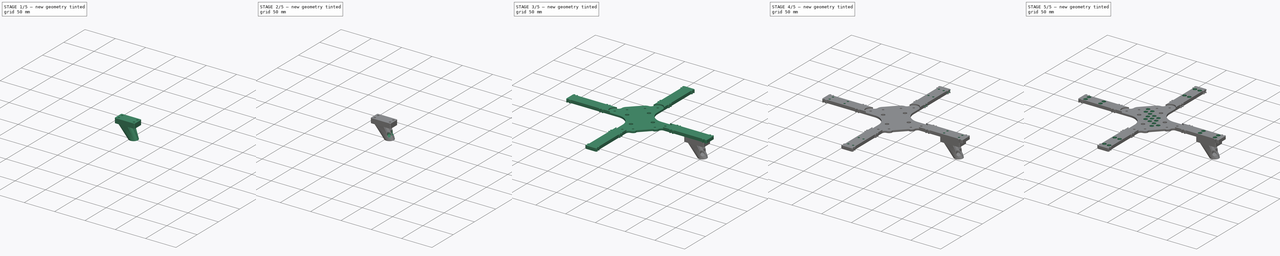
[diagram: build sequence overview — one tinted view per stage of 5, left to right]
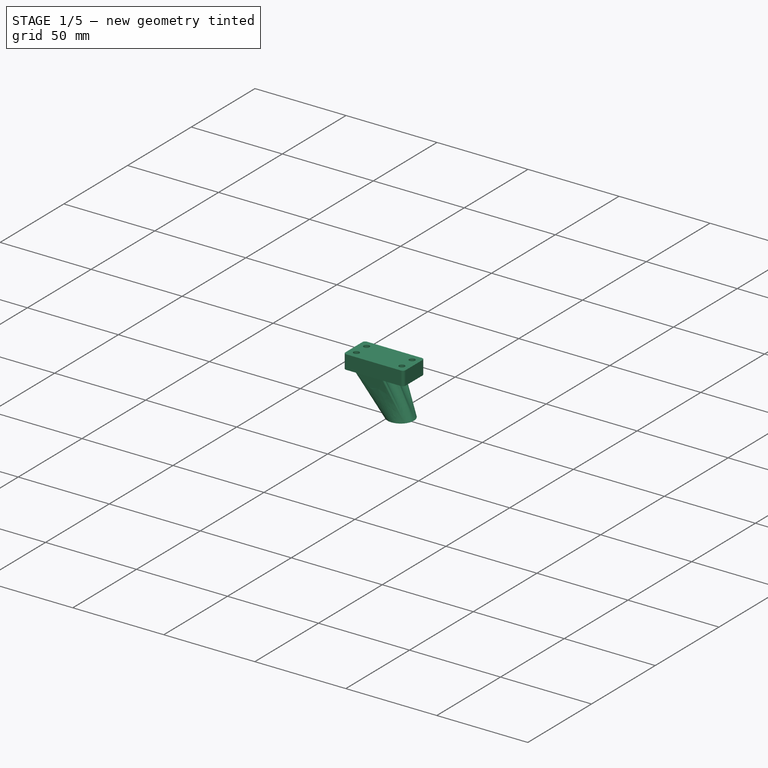
[diagram: stage 1 of 5 — iso view after this stage's code; geometry added in this stage tinted green]
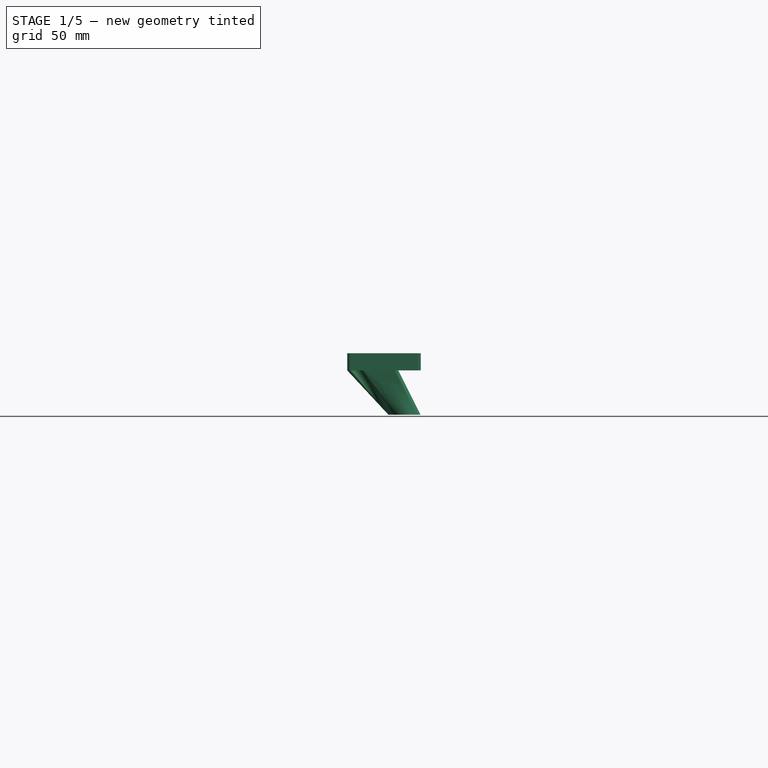
[diagram: stage 1 of 5 — front view after this stage's code; geometry added in this stage tinted green]
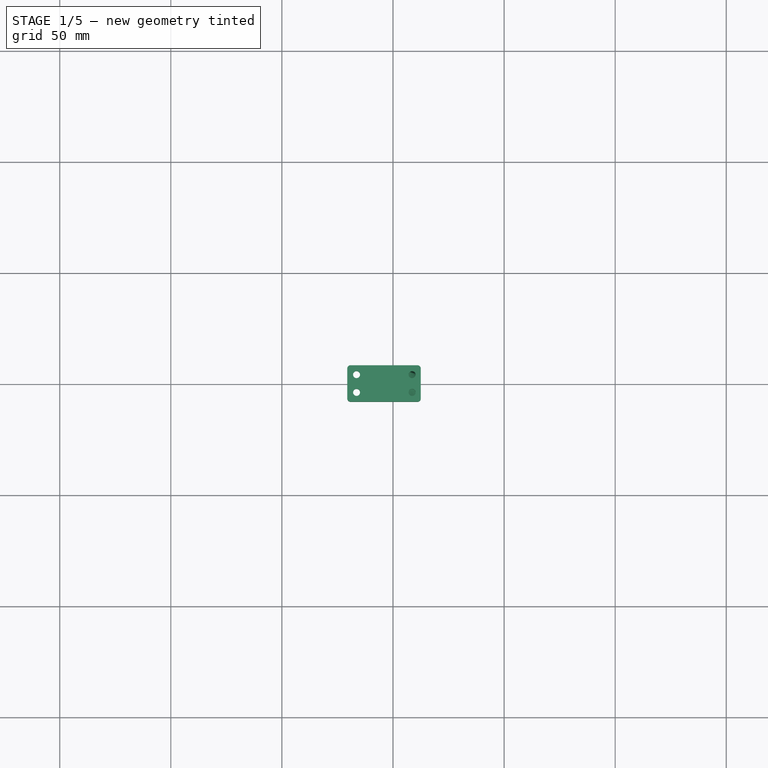
[diagram: stage 1 of 5 — top view after this stage's code; geometry added in this stage tinted green]
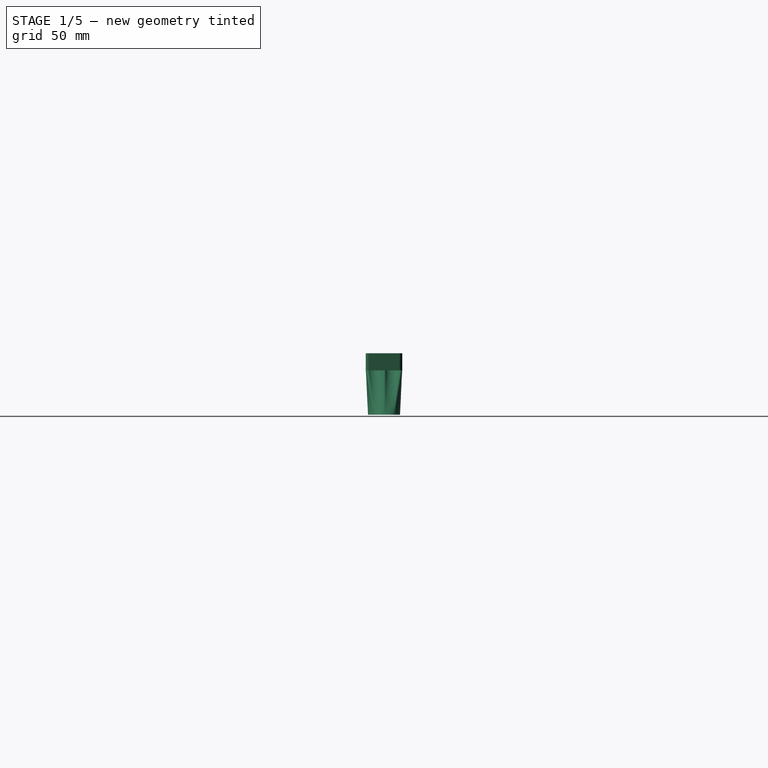
[diagram: stage 1 of 5 — right view after this stage's code; geometry added in this stage tinted green]
FCSTD DOCUMENT  (FreeCAD 0.20R29603 (Git))
Label: Leg_holder_bench
License: All rights reserved
LicenseURL: http://en.wikipedia.org/wiki/All_rights_reserved
objects: Sketcher::SketchObject×15, PartDesign::Pocket×8, PartDesign::Pad×2, PartDesign::Hole×2, PartDesign::Fillet×2, PartDesign::Body×2, PartDesign::Line×2, PartDesign::Draft×2, Spreadsheet::Sheet×1, PartDesign::Chamfer×1, PartDesign::AdditiveLoft×1, PartDesign::Plane×1
note: 56 computed .brp shape members not serialized (recipe doc carries the construction recipe); baked Part::Feature solids carry a one-line shape summary decoded from their .brp

FEATURE [PartDesign::Body] Body
  Group = -> [Sketch,Pad,Sketch001,Pocket,Sketch002,Hole,Sketch003,Pocket001,Sketch004,Sketch005,Pocket002,Pocket003,Sketch006,Hole001,Sketch007,Pocket004,Sketch008,Pocket005,Fillet,Fillet001]
  Origin = -> Origin
  Tip = -> Fillet001
FEATURE [Sketcher::SketchObject] Sketch009
  FullyConstrained = true
  MapMode = 5
  Support = -> [XY_Plane001]
  expr: Constraints[10] = <<dim>>.leg_h
  expr: Constraints[12] = <<dim>>.leg_hole_second_valera - <<dim>>.leg_hole_second_valera_gap
  expr: Constraints[23] = <<dim>>.leg_rounding
  expr: Constraints[24] = <<dim>>.leg_rounding
  expr: Constraints[25] = <<dim>>.leg_rounding
  expr: Constraints[26] = <<dim>>.leg_rounding
  expr: Constraints[27] = <<dim>>.paw_width
  expr: Constraints[28] = <<dim>>.paw_width / 2
  expr: Constraints[29] = <<dim>>.paw_width / 2 - <<dim>>.leg_h / 2
  expr: Constraints[4] = <<dim>>.M3_D
  expr: Constraints[5] = <<dim>>.M3_D
  expr: Constraints[6] = <<dim>>.M3_D
  expr: Constraints[7] = <<dim>>.M3_D
  expr: Constraints[8] = <<dim>>.leg_pos
  expr: Constraints[9] = <<dim>>.leg_w
  sketch-geometry (12):
    g0: LineSegment StartX=79.4 StartY=6.7 StartZ=0 EndX=79.4 EndY=-6.7 EndZ=0
    g1: LineSegment StartX=112.5 StartY=-6.7 StartZ=0 EndX=112.5 EndY=6.7 EndZ=0
    g2: Circle CenterX=108.6 CenterY=4 CenterZ=0 NormalX=0 NormalY=0 NormalZ=1 AngleXU=0 Radius=1.575
    g3: Circle CenterX=108.6 CenterY=-4 CenterZ=0 NormalX=0 NormalY=0 NormalZ=1 AngleXU=0 Radius=1.575
    g4: Circle CenterX=83.6 CenterY=4 CenterZ=0 NormalX=0 NormalY=0 NormalZ=1 AngleXU=0 Radius=1.575
    g5: Circle CenterX=83.6 CenterY=-4 CenterZ=0 NormalX=0 NormalY=0 NormalZ=1 AngleXU=0 Radius=1.575
    g6: ArcOfCircle CenterX=80.9 CenterY=6.7 CenterZ=0 NormalX=0 NormalY=0 NormalZ=1 AngleXU=0 Radius=1.5 StartAngle=1.5708 EndAngle=3.14159
    g7: ArcOfCircle CenterX=111 CenterY=6.7 CenterZ=0 NormalX=0 NormalY=0 NormalZ=1 AngleXU=0 Radius=1.5 StartAngle=0 EndAngle=1.5708
    g8: ArcOfCircle CenterX=80.9 CenterY=-6.7 CenterZ=0 NormalX=0 NormalY=0 NormalZ=1 AngleXU=0 Radius=1.5 StartAngle=3.14159 EndAngle=4.71239
    g9: ArcOfCircle CenterX=111 CenterY=-6.7 CenterZ=0 NormalX=0 NormalY=0 NormalZ=1 AngleXU=0 Radius=1.5 StartAngle=4.71239 EndAngle=6.28319
    g10: LineSegment StartX=80.9 StartY=8.2 StartZ=0 EndX=111 EndY=8.2 EndZ=0
    g11: LineSegment StartX=80.9 StartY=-8.2 StartZ=0 EndX=111 EndY=-8.2 EndZ=0
  constraints (30):
    c: Vertical(g0)
    c: Vertical(g1)
    c: Symmetric(g4,g5,g-1)
    c: Symmetric(g2,g3,g-1)
    c: Diameter(g2) = 3.15
    c: Diameter(g3) = 3.15
    c: Diameter(g4) = 3.15
    c: Diameter(g5) = 3.15
    c: DistanceX(g-1,g2) = 108.6
    c: DistanceX(g4,g2) = 25
    c: DistanceY(g5,g4) = 8
    c: DistanceY(g4,g2) = 0
    c: Distance(g2,g1) = 3.9
    c: Horizontal(g10)
    c: Horizontal(g11)
    c: Tangent(g11,g8) = -1.5708
    c: Tangent(g8,g0) = -1.5708
    c: Tangent(g11,g9) = -1.5708
    c: Tangent(g9,g1) = -1.5708
    c: Tangent(g10,g6) = 1.5708
    c: Tangent(g6,g0) = -1.5708
    c: Tangent(g10,g7) = 1.5708
    c: Tangent(g7,g1) = -1.5708
    c: Diameter(g6) = 3
    c: Diameter(g7) = 3
    c: Diameter(g8) = 3
    c: Diameter(g9) = 3
    c: DistanceY(g8,g6) = 16.4
    c: Distance(g6,g-1) = 8.2
    c: Distance(g4,g0) = 4.2
FEATURE [PartDesign::Pad] Pad001
  Direction = (0,0,1)
  Length = 7.7
  Length2 = 10
  Profile = -> Sketch009
  ReferenceAxis = -> Sketch009 [N_Axis]
  Reversed = true
  Type = 0
  expr: Length = <<dim>>.leg_thickness
FEATURE [PartDesign::Chamfer] Chamfer
  Angle = 45
  Base = -> Pad001 [Edge36,Edge33,Edge27,Edge30]
  BaseFeature = -> Pad001
  ChamferType = 0
  FlipDirection = false
  Size = 2
  Size2 = 1
  SupportTransform = false
  UseAllEdges = false
  expr: Size = <<dim>>.leg_screw_cham
FEATURE [Sketcher::SketchObject] Sketch010
  FullyConstrained = true
  MapMode = 5
  Placement = pos=(0,0,-7.7) rot=(1,0,0;3.14159rad)
  Support = -> [Chamfer]
  expr: Constraints[1] = <<dim>>.leg_pos - <<dim>>.leg_w / 2
  expr: Constraints[2] = <<dim>>.leg_h / 2
  expr: Constraints[3] = <<dim>>.leg_pos
  expr: Constraints[5] = <<dim>>.M3_D + 2 * <<dim>>.leg_screw_cham
  sketch-geometry (3):
    g0: Circle CenterX=96.1 CenterY=0 CenterZ=0 NormalX=0 NormalY=0 NormalZ=1 AngleXU=0 Radius=9.5494
    g1: GeomPoint X=108.6 Y=4 Z=0
    g2: Circle CenterX=108.6 CenterY=4 CenterZ=0 NormalX=0 NormalY=0 NormalZ=1 AngleXU=0 Radius=3.575
  constraints (7):
    c: PointOnObject(g0,g-1)
    c: DistanceX(g-1,g0) = 96.1
    c: Distance(g1,g-1) = 4
    c: DistanceX(g-1,g1) = 108.6
    c: Coincident(g2,g1)
    c: Diameter(g2) = 7.15
    c: Tangent(g2,g0)
FEATURE [Sketcher::SketchObject] Sketch011
  AttachmentOffset = pos=(0,0,-27.7) rot=(0,0,1;0rad)
  FullyConstrained = true
  MapMode = 5
  Placement = pos=(0,0,-27.7) rot=(0,0,1;0rad)
  Support = -> [XY_Plane]
  expr: .AttachmentOffset.Base.x = 0
  expr: .AttachmentOffset.Base.z = -<<dim>>.leg_thickness - <<dim>>.leg_hold_len
  expr: Constraints[1] = <<dim>>.leg_pos - <<dim>>.leg_w + <<dim>>.leg_stick_base_w / 2 + <<dim>>.leg_hold_len * tan(<<dim>>.leg_angle)
  expr: Constraints[2] = 2 * sqrt((<<dim>>.leg_stick_base_w / 2) ^ 2 + (<<dim>>.leg_h / 2) ^ 2) - (<<dim>>.M3_D + 2 * <<dim>>.leg_screw_cham)
  sketch-geometry (1):
    g0: Circle CenterX=105.147 CenterY=0 CenterZ=0 NormalX=0 NormalY=0 NormalZ=1 AngleXU=0 Radius=7.19533
  constraints (3):
    c: PointOnObject(g0,g-1)
    c: DistanceX(g-1,g0) = 105.147
    c: Diameter(g0) = 14.3907
FEATURE [Sketcher::SketchObject] Sketch012
  FullyConstrained = true
  MapMode = 5
  Placement = pos=(0,0,-7.7) rot=(1,0,0;3.14159rad)
  Support = -> [Chamfer]
  expr: Constraints[17] = <<dim>>.paw_width
  expr: Constraints[27] = <<dim>>.leg_pos - <<dim>>.leg_w
  expr: Constraints[2] = <<dim>>.leg_h / 2
  expr: Constraints[31] = <<dim>>.leg_stick_base_w / 2
  expr: Constraints[34] = (<<dim>>.paw_width - <<dim>>.leg_h) / 2
  expr: Constraints[38] = 2
  expr: Constraints[4] = <<dim>>.leg_stick_base_w
  expr: Constraints[5] = <<dim>>.M3_D + <<dim>>.leg_screw_cham * 2
  expr: Constraints[6] = <<dim>>.M3_D + <<dim>>.leg_screw_cham * 2
  sketch-geometry (16):
    g0: ArcOfCircle CenterX=83.6 CenterY=4 CenterZ=0 NormalX=0 NormalY=0 NormalZ=1 AngleXU=0 Radius=3.575 StartAngle=4.0919 EndAngle=7.12114
    g1: ArcOfCircle CenterX=86.5837 CenterY=7.315 CenterZ=0 NormalX=0 NormalY=0 NormalZ=1 AngleXU=0 Radius=0.885 StartAngle=1.5708 EndAngle=3.97954
    g2: LineSegment StartX=86.5837 StartY=8.2 StartZ=0 EndX=100.616 EndY=8.2 EndZ=0
    g3: ArcOfCircle CenterX=100.616 CenterY=7.315 CenterZ=0 NormalX=0 NormalY=0 NormalZ=1 AngleXU=0 Radius=0.885 StartAngle=5.44523 EndAngle=7.85398
    g4: ArcOfCircle CenterX=103.6 CenterY=4 CenterZ=0 NormalX=0 NormalY=0 NormalZ=1 AngleXU=0 Radius=3.575 StartAngle=2.30364 EndAngle=4.20562
    g5: ArcOfCircle CenterX=103.6 CenterY=-4 CenterZ=0 NormalX=0 NormalY=0 NormalZ=1 AngleXU=0 Radius=3.575 StartAngle=2.07757 EndAngle=3.97954
    g6: ArcOfCircle CenterX=100.616 CenterY=-7.315 CenterZ=0 NormalX=0 NormalY=0 NormalZ=1 AngleXU=0 Radius=0.885 StartAngle=4.71239 EndAngle=7.12114
    g7: LineSegment StartX=100.616 StartY=-8.2 StartZ=0 EndX=86.5837 EndY=-8.2 EndZ=0
    g8: ArcOfCircle CenterX=86.5837 CenterY=-7.315 CenterZ=0 NormalX=0 NormalY=0 NormalZ=1 AngleXU=0 Radius=0.885 StartAngle=2.30364 EndAngle=4.71239
    g9: ArcOfCircle CenterX=83.6 CenterY=-4 CenterZ=0 NormalX=0 NormalY=0 NormalZ=1 AngleXU=0 Radius=3.575 StartAngle=5.44523 EndAngle=8.47447
    g10: LineSegment StartX=93.6 StartY=17.38 StartZ=0 EndX=93.6 EndY=-19.22 EndZ=0
    g11: GeomPoint X=93.6 Y=0 Z=0
    g12: ArcOfCircle CenterX=80.7414 CenterY=-7e-16 CenterZ=0 NormalX=0 NormalY=0 NormalZ=1 AngleXU=0 Radius=1.34144 StartAngle=0.950312 EndAngle=5.33287
    g13: ArcOfCircle CenterX=101.379 CenterY=-2e-16 CenterZ=0 NormalX=0 NormalY=0 NormalZ=1 AngleXU=0 Radius=1 StartAngle=5.21916 EndAngle=7.34721
    g14: GeomPoint X=79.4 Y=0 Z=0
    g15: GeomPoint X=102.379 Y=0 Z=0
  constraints (39):
    c: Symmetric(g0,g9,g-1)
    c: Symmetric(g4,g5,g-1)
    c: Distance(g0,g-1) = 4
    c: DistanceY(g0,g4) = 0
    c: DistanceX(g0,g4) = 20
    c: Diameter(g4) = 7.15
    c: Diameter(g0) = 7.15
    c: Tangent(g1,g0) = 1.5708
    c: Tangent(g4,g3) = 1.5708
    c: Tangent(g6,g5) = 1.5708
    c: Tangent(g9,g8) = 1.5708
    c: Tangent(g8,g7) = 1.5708
    c: Tangent(g7,g6) = 1.5708
    c: Tangent(g2,g1) = 1.5708
    c: Symmetric(g3,g6,g-1)
    c: Symmetric(g1,g8,g-1)
    c: Tangent(g3,g2) = 1.5708
    c: Distance(g1,g7) = 16.4
    c: Distance(g10,g-1) = 17.38
    c: Distance(g10,g-1) = 19.22
    c: Symmetric(g1,g3,g10)
    c: Symmetric(g4,g5,g-1)
    c: Symmetric(g0,g9,g-1)
    c: PointOnObject(g11,g-1)
    c: PointOnObject(g11,g10)
    c: Coincident(g12,g0)
    c: Diameter(g8) = 1.77
    c: DistanceX(g-1,g0) = 83.6
    c: Horizontal(g2)
    c: Coincident(g13,g5)
    c: Tangent(g13,g4) = 1.5708
    c: DistanceX(g0,g11) = 10
    c: PointOnObject(g14,g-1)
    c: PointOnObject(g14,g12)
    c: DistanceX(g14,g0) = 4.2
    c: Tangent(g12,g9) = 1.5708
    c: PointOnObject(g15,g13)
    c: PointOnObject(g15,g-1)
    c: Diameter(g13) = 2
FEATURE [PartDesign::AdditiveLoft] AdditiveLoft
  BaseFeature = -> Chamfer
  Closed = false
  Profile = -> Sketch012
  Ruled = false
  Sections = -> [Sketch011]
FEATURE [PartDesign::Line] DatumLine001
  AttacherType = Attacher::AttachEngineLine
  AttachmentOffset = pos=(0,0,-27.7) rot=(-1,0,0;1.5708rad)
  Length = 20
  MapMode = 42
  Placement = pos=(105.147,-4e-16,-27.7) rot=(-1,0,0;1.5708rad)
  ResizeMode = 0
  Support = -> [AdditiveLoft]
  expr: .AttachmentOffset.Base.z = -<<dim>>.leg_thickness - +<<dim>>.leg_hold_len
FEATURE [PartDesign::Plane] DatumPlane
  AttachmentOffset = pos=(105.147,0,0) rot=(0,1,0;0.523599rad)
  Length = 163.542
  MapMode = 5
  Placement = pos=(105.147,0,-27.7) rot=(0.965926,0,0.258819;3.14159rad)
  ResizeMode = 0
  Support = -> [AdditiveLoft]
  Width = 67.1131
  expr: .AttachmentOffset.Base.x = <<dim>>.leg_pos - <<dim>>.leg_w + <<dim>>.leg_stick_base_w / 2 + <<dim>>.leg_hold_len * tan(<<dim>>.leg_angle)
  expr: .AttachmentOffset.Rotation.Pitch = <<dim>>.leg_angle
FEATURE [Sketcher::SketchObject] Sketch013
  FullyConstrained = true
  MapMode = 5
  Placement = pos=(105.147,0,-27.7) rot=(0.965926,0,0.258819;3.14159rad)
  Support = -> [DatumPlane]
  expr: Constraints[1] = <<dim>>.leg_stick
  sketch-geometry (1):
    g0: Circle CenterX=0 CenterY=0 CenterZ=0 NormalX=0 NormalY=0 NormalZ=1 AngleXU=0 Radius=4
  constraints (2):
    c: Coincident(g0,g-1)
    c: Diameter(g0) = 8
FEATURE [PartDesign::Pocket] Pocket006
  BaseFeature = -> AdditiveLoft
  Direction = (-0.5,0,0.866025)
  Length = 55.4
  Length2 = 5
  Midplane = true
  Profile = -> Sketch013
  ReferenceAxis = -> Sketch013 [N_Axis]
  Type = 0
  expr: Length = 2 * (<<dim>>.leg_thickness + <<dim>>.leg_hold_len)
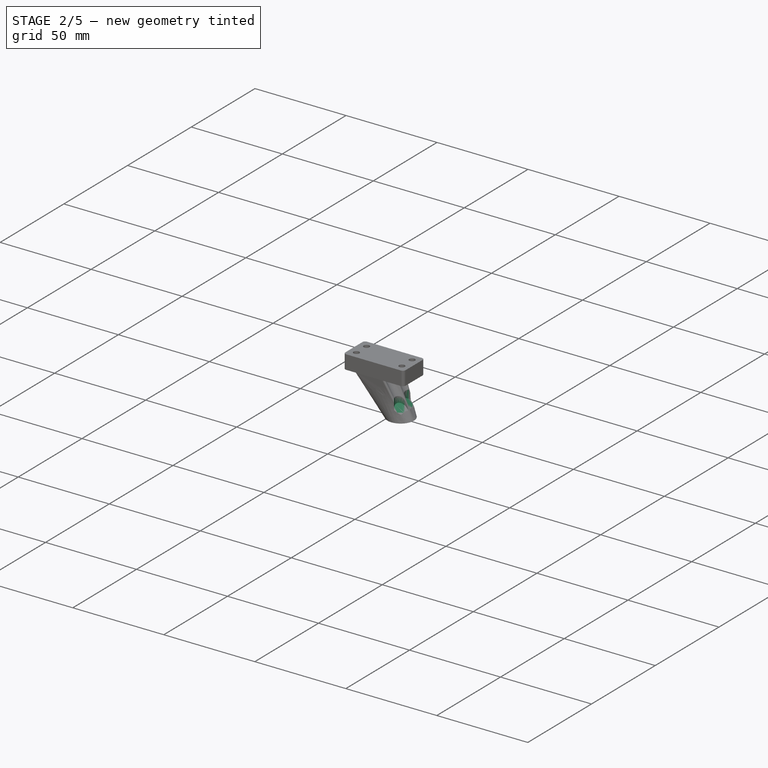
[diagram: stage 2 of 5 — iso view after this stage's code; geometry added in this stage tinted green]
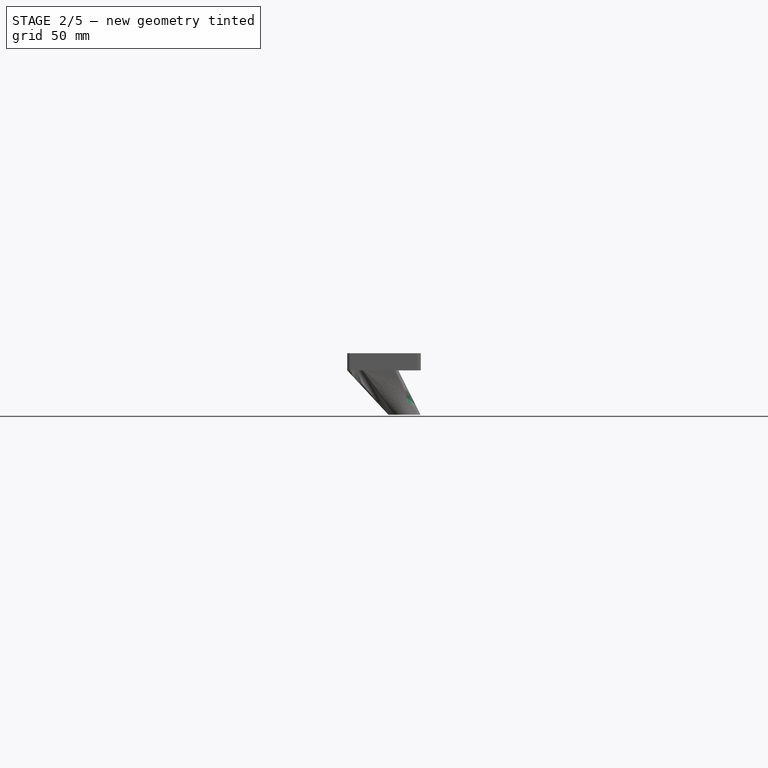
[diagram: stage 2 of 5 — front view after this stage's code; geometry added in this stage tinted green]
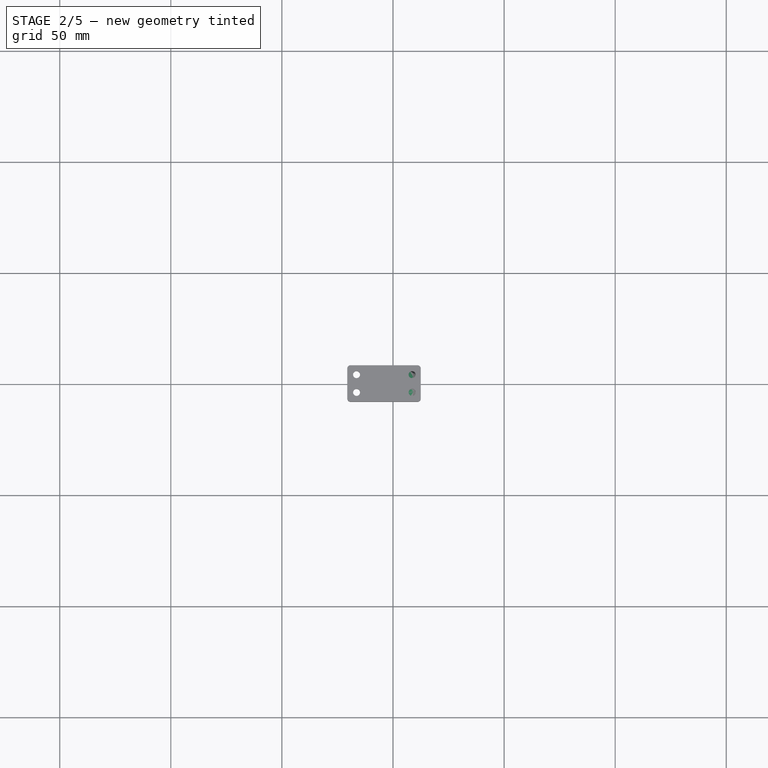
[diagram: stage 2 of 5 — top view after this stage's code; geometry added in this stage tinted green]
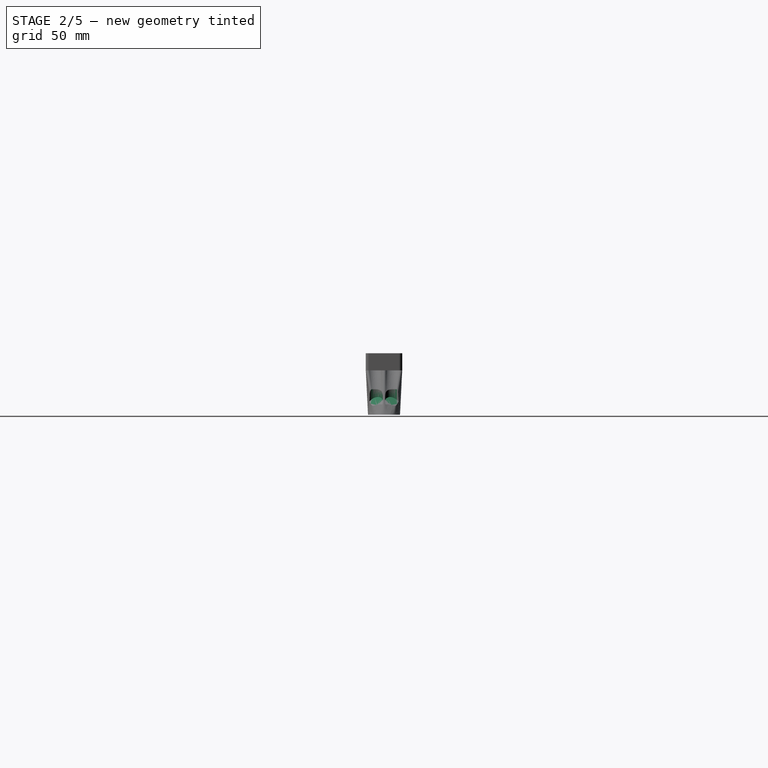
[diagram: stage 2 of 5 — right view after this stage's code; geometry added in this stage tinted green]
FEATURE [PartDesign::Line] DatumLine
  AttacherType = Attacher::AttachEngineLine
  AttachmentOffset = pos=(0,0,0) rot=(0,-1,0;0.523599rad)
  Length = 20
  MapMode = 42
  Placement = pos=(95.9408,1.1e-15,0) rot=(0,-1,0;0.523599rad)
  ResizeMode = 0
  Support = -> [Pocket006]
  expr: .AttachmentOffset.Rotation.Pitch = -<<dim>>.leg_angle
FEATURE [Sketcher::SketchObject] Sketch014
  FullyConstrained = true
  MapMode = 5
  Placement = pos=(0,0,-7.7) rot=(1,0,0;3.14159rad)
  Support = -> [Pocket006]
  expr: Constraints[2] = <<dim>>.leg_w
  expr: Constraints[3] = <<dim>>.leg_pos
  expr: Constraints[4] = <<dim>>.M3_D + <<dim>>.leg_screw_cham * 2
  expr: Constraints[5] = <<dim>>.M3_D + <<dim>>.leg_screw_cham * 2
  expr: Constraints[6] = <<dim>>.M3_D + <<dim>>.leg_screw_cham * 2
  expr: Constraints[7] = <<dim>>.M3_D + <<dim>>.leg_screw_cham * 2
  expr: Constraints[9] = <<dim>>.leg_h
  sketch-geometry (4):
    g0: Circle CenterX=108.6 CenterY=4 CenterZ=0 NormalX=0 NormalY=0 NormalZ=1 AngleXU=0 Radius=3.575
    g1: Circle CenterX=108.6 CenterY=-4 CenterZ=0 NormalX=0 NormalY=0 NormalZ=1 AngleXU=0 Radius=3.575
    g2: Circle CenterX=83.6 CenterY=-4 CenterZ=0 NormalX=0 NormalY=0 NormalZ=1 AngleXU=0 Radius=3.575
    g3: Circle CenterX=83.6 CenterY=4 CenterZ=0 NormalX=0 NormalY=0 NormalZ=1 AngleXU=0 Radius=3.575
  constraints (10):
    c: Symmetric(g3,g2,g-1)
    c: Symmetric(g0,g1,g-1)
    c: DistanceX(g3,g0) = 25
    c: DistanceX(g-1,g0) = 108.6
    c: Diameter(g0) = 7.15
    c: Diameter(g1) = 7.15
    c: Diameter(g3) = 7.15
    c: Diameter(g2) = 7.15
    c: DistanceY(g2,g1) = 0
    c: DistanceY(g1,g0) = 8
FEATURE [PartDesign::Pocket] Pocket007
  BaseFeature = -> Pocket006
  Direction = (0,0,1)
  Length = 12
  Length2 = 5
  Profile = -> Sketch014
  ReferenceAxis = -> Sketch014 [N_Axis]
  Reversed = true
  Type = 0
  expr: Length = <<dim>>.leg_screw_len
FEATURE [PartDesign::Draft] Draft
  Angle = 43
  Base = -> Pocket007 [Face38]
  BaseFeature = -> Pocket007
  SupportTransform = false
FEATURE [PartDesign::Draft] Draft001
  Angle = 43
  Base = -> Draft [Face45]
  BaseFeature = -> Draft
  SupportTransform = false
FEATURE [PartDesign::Body] Body001
  Group = -> [Sketch009,Pad001,Chamfer,Sketch010,DatumLine,Sketch011,Sketch012,AdditiveLoft,DatumLine001,DatumPlane,Sketch013,Pocket006,Sketch014,Pocket007,Draft,Draft001]
  Origin = -> Origin001
  Tip = -> Draft001
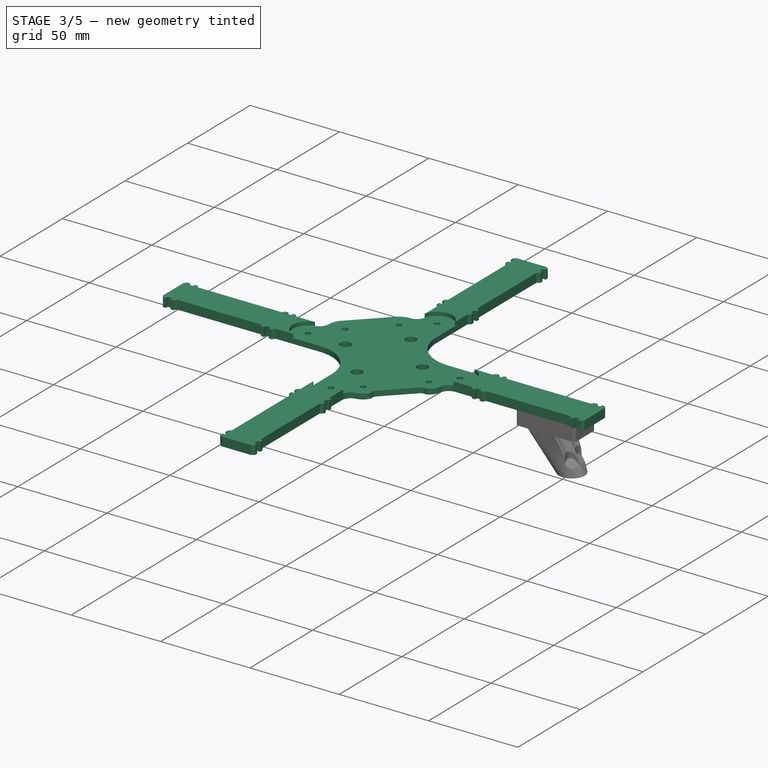
[diagram: stage 3 of 5 — iso view after this stage's code; geometry added in this stage tinted green]
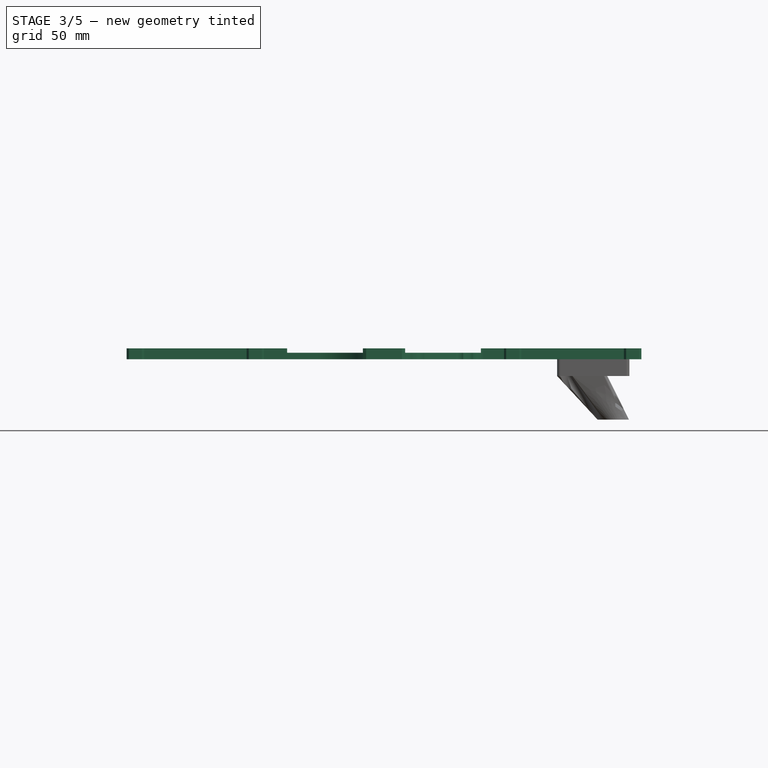
[diagram: stage 3 of 5 — front view after this stage's code; geometry added in this stage tinted green]
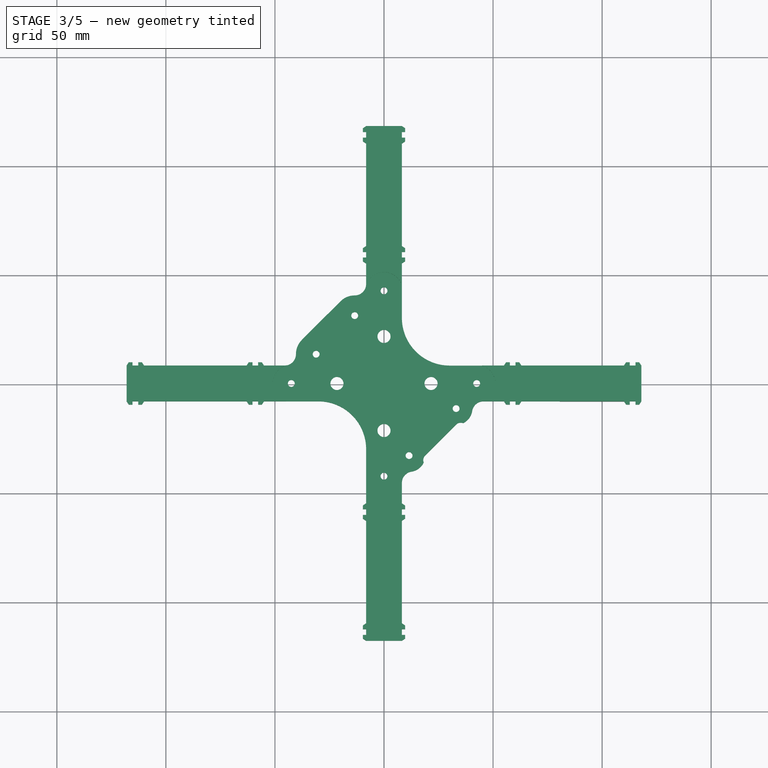
[diagram: stage 3 of 5 — top view after this stage's code; geometry added in this stage tinted green]
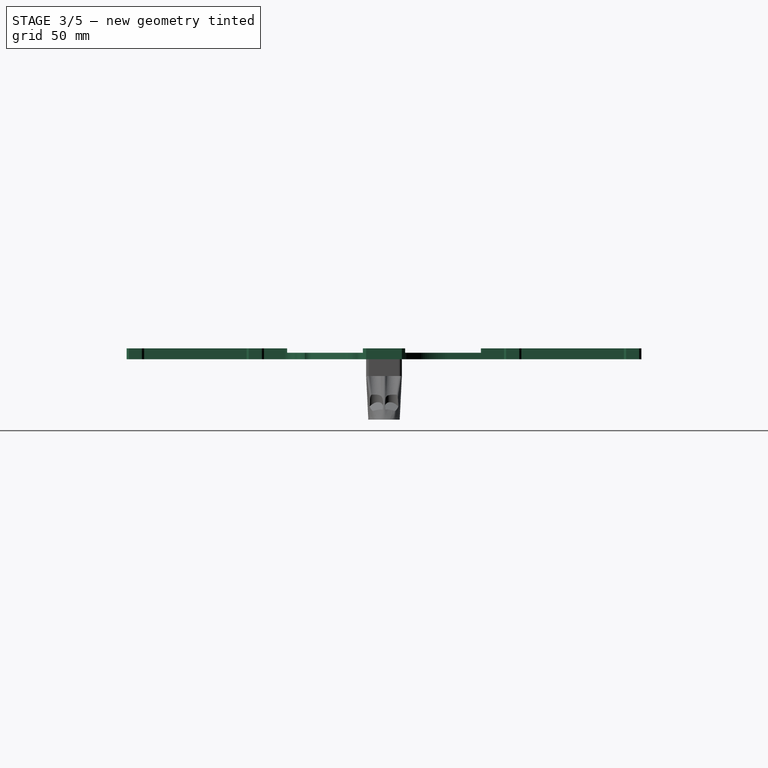
[diagram: stage 3 of 5 — right view after this stage's code; geometry added in this stage tinted green]
FEATURE [Sketcher::SketchObject] Sketch
  FullyConstrained = true
  MapMode = 5
  Support = -> [XY_Plane]
  expr: Constraints[106] = <<dim>>.valera_h
  expr: Constraints[107] = <<dim>>.valera_h
  expr: Constraints[108] = <<dim>>.valera_shift
  expr: Constraints[109] = <<dim>>.valera_shift
  expr: Constraints[10] = <<dim>>.paw_width / 2
  expr: Constraints[110] = <<dim>>.valera_len / 2 - <<dim>>.valera_wid / 2 - <<dim>>.valera_shift
  expr: Constraints[111] = <<dim>>.valera_len / 2 - <<dim>>.valera_wid / 2 - <<dim>>.valera_shift
  expr: Constraints[11] = <<dim>>.paw_width / 2
  expr: Constraints[122] = <<dim>>.valera_len / 2 - <<dim>>.valera_wid / 2 - <<dim>>.valera_shift
  expr: Constraints[123] = <<dim>>.valera_len / 2 - <<dim>>.valera_wid / 2 - <<dim>>.valera_shift
  expr: Constraints[124] = <<dim>>.valera_shift
  expr: Constraints[125] = <<dim>>.valera_shift
  expr: Constraints[129] = <<dim>>.valera_h
  expr: Constraints[12] = <<dim>>.paw_width / 2
  expr: Constraints[13] = <<dim>>.paw_width / 2
  expr: Constraints[14] = <<dim>>.paw_width / 2
  expr: Constraints[155] = <<dim>>.valera_len
  expr: Constraints[156] = <<dim>>.valera_wid
  expr: Constraints[157] = <<dim>>.valera_wid
  expr: Constraints[15] = <<dim>>.paw_width / 2
  expr: Constraints[164] = <<dim>>.valera_h
  expr: Constraints[165] = <<dim>>.valera_h
  expr: Constraints[168] = <<dim>>.valera_len / 2 - <<dim>>.valera_wid / 2 - <<dim>>.valera_shift
  expr: Constraints[169] = <<dim>>.valera_len / 2 - <<dim>>.valera_wid / 2 - <<dim>>.valera_shift
  expr: Constraints[16] = <<dim>>.paw_width / 2
  expr: Constraints[170] = <<dim>>.valera_shift
  expr: Constraints[173] = <<dim>>.valera_shift
  expr: Constraints[174] = <<dim>>.valera_len / 2 - <<dim>>.valera_wid / 2 - <<dim>>.valera_shift
  expr: Constraints[175] = <<dim>>.valera_len / 2 - <<dim>>.valera_wid / 2 - <<dim>>.valera_shift
  expr: Constraints[17] = <<dim>>.paw_width / 2
  expr: Constraints[18] = <<dim>>.paw_width / 2
  expr: Constraints[19] = <<dim>>.paw_width / 2
  expr: Constraints[20] = <<dim>>.D_big_circ
  expr: Constraints[21] = <<dim>>.D_big_circ
  expr: Constraints[230] = <<dim>>.valera_len / 2 - <<dim>>.valera_wid / 2 - <<dim>>.valera_shift
  expr: Constraints[231] = <<dim>>.valera_len / 2 - <<dim>>.valera_wid / 2 - <<dim>>.valera_shift
  expr: Constraints[232] = <<dim>>.valera_len / 2 - <<dim>>.valera_wid / 2 - <<dim>>.valera_shift
  expr: Constraints[233] = <<dim>>.valera_len / 2 - <<dim>>.valera_wid / 2 - <<dim>>.valera_shift
  expr: Constraints[234] = <<dim>>.valera_len / 2 - <<dim>>.valera_wid / 2 - <<dim>>.valera_shift
  expr: Constraints[235] = <<dim>>.valera_len / 2 - <<dim>>.valera_wid / 2 - <<dim>>.valera_shift
  expr: Constraints[236] = <<dim>>.valera_len / 2 - <<dim>>.valera_wid / 2 - <<dim>>.valera_shift
  expr: Constraints[237] = <<dim>>.valera_len / 2 - <<dim>>.valera_wid / 2 - <<dim>>.valera_shift
  expr: Constraints[248] = <<dim>>.valera_h
  expr: Constraints[250] = <<dim>>.valera_h
  expr: Constraints[252] = <<dim>>.valera_shift
  expr: Constraints[253] = <<dim>>.valera_shift
  expr: Constraints[254] = <<dim>>.valera_shift
  expr: Constraints[255] = <<dim>>.valera_shift
  expr: Constraints[256] = <<dim>>.second_valera_dist
  expr: Constraints[257] = <<dim>>.paw_width / 2
  expr: Constraints[258] = <<dim>>.valera_len
  expr: Constraints[259] = <<dim>>.valera_len
  expr: Constraints[260] = <<dim>>.valera_len
  expr: Constraints[261] = <<dim>>.valera_len
  expr: Constraints[262] = <<dim>>.valera_shift
  expr: Constraints[263] = <<dim>>.valera_shift
  expr: Constraints[264] = <<dim>>.valera_shift
  expr: Constraints[265] = <<dim>>.valera_shift
  expr: Constraints[266] = <<dim>>.valera_h
  expr: Constraints[267] = <<dim>>.valera_h
  expr: Constraints[300] = <<dim>>.second_valera_dist
  expr: Constraints[302] = <<dim>>.paw_width / 2
  expr: Constraints[303] = <<dim>>.paw_width / 2
  expr: Constraints[304] = <<dim>>.valera_len
  expr: Constraints[306] = <<dim>>.valera_len
  expr: Constraints[30] = <<dim>>.first_valera_dist
  expr: Constraints[31] = <<dim>>.second_valera_dist
  expr: Constraints[32] = <<dim>>.second_valera_dist
  expr: Constraints[330] = <<dim>>.valera_shift
  expr: Constraints[332] = <<dim>>.valera_shift
  expr: Constraints[338] = <<dim>>.valera_len / 2 - <<dim>>.valera_wid / 2 - <<dim>>.valera_shift
  expr: Constraints[339] = <<dim>>.valera_len / 2 - <<dim>>.valera_wid / 2 - <<dim>>.valera_shift
  expr: Constraints[33] = <<dim>>.valera_len
  expr: Constraints[340] = <<dim>>.valera_len / 2 - <<dim>>.valera_wid / 2 - <<dim>>.valera_shift
  expr: Constraints[341] = <<dim>>.valera_len / 2 - <<dim>>.valera_wid / 2 - <<dim>>.valera_shift
  expr: Constraints[342] = <<dim>>.valera_shift
  expr: Constraints[343] = <<dim>>.valera_shift
  expr: Constraints[34] = <<dim>>.valera_len
  expr: Constraints[355] = <<dim>>.valera_h
  expr: Constraints[356] = <<dim>>.valera_h
  expr: Constraints[357] = <<dim>>.valera_h
  expr: Constraints[358] = <<dim>>.valera_h
  expr: Constraints[35] = <<dim>>.first_valera_dist
  expr: Constraints[36] = <<dim>>.first_valera_dist
  expr: Constraints[37] = <<dim>>.first_valera_dist
  expr: Constraints[38] = <<dim>>.first_valera_dist
  expr: Constraints[39] = <<dim>>.first_valera_dist
  expr: Constraints[40] = <<dim>>.first_valera_dist
  expr: Constraints[41] = <<dim>>.small_circ
  expr: Constraints[42] = <<dim>>.small_circ
  expr: Constraints[47] = <<dim>>.small_circ
  expr: Constraints[48] = <<dim>>.small_circ
  expr: Constraints[49] = <<dim>>.first_valera_dist
  expr: Constraints[55] = <<dim>>.front_crew_dist
  expr: Constraints[56] = <<dim>>.front_crew_dist / 2
  expr: Constraints[57] = <<dim>>.front_crews_h
  expr: Constraints[65] = <<dim>>.back_crew_dist / 2
  expr: Constraints[66] = <<dim>>.back_crew_dist / 2
  expr: Constraints[67] = <<dim>>.back_crews_h
  expr: Constraints[73] = <<dim>>.back_extra_crews_h
  expr: Constraints[74] = <<dim>>.back_extra_crew_dist / 2
  expr: Constraints[75] = <<dim>>.back_extra_crew_dist / 2
  expr: Constraints[88] = <<dim>>.M3_D
  expr: Constraints[89] = <<dim>>.M3_D
  expr: Constraints[90] = <<dim>>.M3_D
  expr: Constraints[91] = <<dim>>.M3_D
  sketch-geometry (155):
    g0: LineSegment StartX=-8.2 StartY=45.62 StartZ=0 EndX=-8.2 EndY=55 EndZ=0
    g1: LineSegment StartX=8.2 StartY=55 StartZ=0 EndX=8.2 EndY=30.0932 EndZ=0
    g2: ArcOfCircle CenterX=30.0932 CenterY=30.0932 CenterZ=0 NormalX=0 NormalY=0 NormalZ=1 AngleXU=0 Radius=21.8932 StartAngle=3.14159 EndAngle=4.71239
    g3: LineSegment StartX=30.0932 StartY=8.2 StartZ=0 EndX=55 EndY=8.2 EndZ=0
    g4: LineSegment StartX=63 StartY=8.2 StartZ=0 EndX=110 EndY=8.2 EndZ=0
    g5: LineSegment StartX=110 StartY=-8.2 StartZ=0 EndX=63 EndY=-8.2 EndZ=0
    g6: LineSegment StartX=55 StartY=-8.2 StartZ=0 EndX=45.62 EndY=-8.2 EndZ=0
    g7: LineSegment StartX=-8.2 StartY=-30.0932 StartZ=0 EndX=-8.2 EndY=-55 EndZ=0
    g8: LineSegment StartX=8.2 StartY=-45.62 StartZ=0 EndX=8.2 EndY=-55 EndZ=0
    g9: LineSegment StartX=-30.0932 StartY=-8.2 StartZ=0 EndX=-55 EndY=-8.2 EndZ=0
    g10: LineSegment StartX=-45.62 StartY=8.2 StartZ=0 EndX=-55 EndY=8.2 EndZ=0
    g11: ArcOfCircle CenterX=-30.0932 CenterY=-30.0932 CenterZ=0 NormalX=0 NormalY=0 NormalZ=1 AngleXU=0 Radius=21.8932 StartAngle=1e-16 EndAngle=1.5708
    g12: ArcOfCircle CenterX=-45.62 CenterY=13.45 CenterZ=0 NormalX=0 NormalY=0 NormalZ=1 AngleXU=0 Radius=5.25 StartAngle=4.71239 EndAngle=6.28215
    g13: ArcOfCircle CenterX=-13.45 CenterY=45.62 CenterZ=0 NormalX=0 NormalY=0 NormalZ=1 AngleXU=0 Radius=5.25 StartAngle=4.71342 EndAngle=6.28319
    g14: ArcOfCircle CenterX=13.45 CenterY=-45.62 CenterZ=0 NormalX=0 NormalY=0 NormalZ=1 AngleXU=0 Radius=5.25 StartAngle=1.72553 EndAngle=3.14159
    g15: ArcOfCircle CenterX=45.62 CenterY=-13.45 CenterZ=0 NormalX=0 NormalY=0 NormalZ=1 AngleXU=0 Radius=5.25 StartAngle=1.5708 EndAngle=2.98686
    g16: LineSegment StartX=-253.46 StartY=253.46 StartZ=0 EndX=94.62 EndY=-94.62 EndZ=0
    g17: LineSegment StartX=-88.85 StartY=-88.85 StartZ=0 EndX=101.13 EndY=101.13 EndZ=0
    g18: LineSegment StartX=-13.435 StartY=31.1127 StartZ=0 EndX=-31.1127 EndY=13.435 EndZ=0
    g19: ArcOfCircle CenterX=-13.435 CenterY=31.1127 CenterZ=0 NormalX=0 NormalY=0 NormalZ=1 AngleXU=0 Radius=9.25731 StartAngle=1.57183 EndAngle=2.35619
    g20: ArcOfCircle CenterX=-31.1127 CenterY=13.435 CenterZ=0 NormalX=0 NormalY=0 NormalZ=1 AngleXU=0 Radius=9.25731 StartAngle=2.35619 EndAngle=3.14056
    g21: LineSegment StartX=-19.9809 StartY=37.6586 StartZ=0 EndX=-37.6586 EndY=19.9809 EndZ=0
    g22: LineSegment StartX=11.4905 StartY=-33.0572 StartZ=0 EndX=33.0572 EndY=-11.4905 EndZ=0
    g23: ArcOfCircle CenterX=33.0572 CenterY=-11.4905 CenterZ=0 NormalX=0 NormalY=0 NormalZ=1 AngleXU=0 Radius=7.46466 StartAngle=5.15861 EndAngle=6.12845
    g24: ArcOfCircle CenterX=11.4905 CenterY=-33.0572 CenterZ=0 NormalX=0 NormalY=0 NormalZ=1 AngleXU=0 Radius=7.46466 StartAngle=4.86712 EndAngle=5.83697
    g25: LineSegment StartX=21.0011 StartY=-35.1432 StartZ=0 EndX=35.1432 EndY=-21.0011 EndZ=0
    g26: ArcOfCircle CenterX=21.0011 CenterY=-35.1432 CenterZ=0 NormalX=0 NormalY=0 NormalZ=1 AngleXU=0 Radius=3 StartAngle=2.35619 EndAngle=3.52975
    g27: ArcOfCircle CenterX=35.1432 CenterY=-21.0011 CenterZ=0 NormalX=0 NormalY=0 NormalZ=1 AngleXU=0 Radius=3 StartAngle=1.18264 EndAngle=2.35619
    g28: LineSegment StartX=18.8798 StartY=-33.0219 StartZ=0 EndX=33.0219 EndY=-18.8798 EndZ=0
    g29: Circle CenterX=11.4905 CenterY=-33.0572 CenterZ=0 NormalX=0 NormalY=0 NormalZ=1 AngleXU=0 Radius=1.575
    g30: Circle CenterX=33.0572 CenterY=-11.4905 CenterZ=0 NormalX=0 NormalY=0 NormalZ=1 AngleXU=0 Radius=1.575
    g31: Circle CenterX=-31.1127 CenterY=13.435 CenterZ=0 NormalX=0 NormalY=0 NormalZ=1 AngleXU=0 Radius=1.575
    g32: Circle CenterX=-13.435 CenterY=31.1127 CenterZ=0 NormalX=0 NormalY=0 NormalZ=1 AngleXU=0 Radius=1.575
    g33: LineSegment StartX=55 StartY=8.2 StartZ=0 EndX=56 EndY=9.7 EndZ=0
    g34: LineSegment StartX=56 StartY=9.7 StartZ=0 EndX=57.7 EndY=9.7 EndZ=0
    g35: LineSegment StartX=60.3 StartY=9.7 StartZ=0 EndX=62 EndY=9.7 EndZ=0
    g36: LineSegment StartX=62 StartY=9.7 StartZ=0 EndX=63 EndY=8.2 EndZ=0
    g37: LineSegment StartX=57.7 StartY=9.7 StartZ=0 EndX=57.7 EndY=8.2 EndZ=0
    g38: LineSegment StartX=57.7 StartY=8.2 StartZ=0 EndX=60.3 EndY=8.2 EndZ=0
    g39: LineSegment StartX=60.3 StartY=9.7 StartZ=0 EndX=60.3 EndY=8.2 EndZ=0
    g40: LineSegment StartX=55 StartY=-8.2 StartZ=0 EndX=56 EndY=-9.7 EndZ=0
    g41: LineSegment StartX=56 StartY=-9.7 StartZ=0 EndX=57.7 EndY=-9.7 EndZ=0
    g42: LineSegment StartX=60.3 StartY=-9.7 StartZ=0 EndX=62 EndY=-9.7 EndZ=0
    g43: LineSegment StartX=62 StartY=-9.7 StartZ=0 EndX=63 EndY=-8.2 EndZ=0
    g44: LineSegment StartX=57.7 StartY=-9.7 StartZ=0 EndX=57.7 EndY=-8.2 EndZ=0
    g45: LineSegment StartX=57.7 StartY=-8.2 StartZ=0 EndX=60.3 EndY=-8.2 EndZ=0
    g46: LineSegment StartX=60.3 StartY=-9.7 StartZ=0 EndX=60.3 EndY=-8.2 EndZ=0
    g47: LineSegment StartX=110 StartY=8.2 StartZ=0 EndX=111 EndY=9.7 EndZ=0
    g48: LineSegment StartX=111 StartY=9.7 StartZ=0 EndX=112.7 EndY=9.7 EndZ=0
    g49: LineSegment StartX=112.7 StartY=9.7 StartZ=0 EndX=112.7 EndY=8.2 EndZ=0
    g50: LineSegment StartX=112.7 StartY=8.2 StartZ=0 EndX=115.3 EndY=8.2 EndZ=0
    g51: LineSegment StartX=115.3 StartY=8.2 StartZ=0 EndX=115.3 EndY=9.7 EndZ=0
    g52: LineSegment StartX=115.3 StartY=9.7 StartZ=0 EndX=117 EndY=9.7 EndZ=0
    g53: LineSegment StartX=117 StartY=9.7 StartZ=0 EndX=118 EndY=8.2 EndZ=0
    g54: LineSegment StartX=118 StartY=8.2 StartZ=0 EndX=118 EndY=-8.2 EndZ=0
    g55: LineSegment StartX=118 StartY=-8.2 StartZ=0 EndX=117 EndY=-9.7 EndZ=0
    g56: LineSegment StartX=117 StartY=-9.7 StartZ=0 EndX=115.3 EndY=-9.7 EndZ=0
    g57: LineSegment StartX=115.3 StartY=-9.7 StartZ=0 EndX=115.3 EndY=-8.2 EndZ=0
    g58: LineSegment StartX=115.3 StartY=-8.2 StartZ=0 EndX=112.7 EndY=-8.2 EndZ=0
    g59: LineSegment StartX=112.7 StartY=-8.2 StartZ=0 EndX=112.7 EndY=-9.7 EndZ=0
    g60: LineSegment StartX=112.7 StartY=-9.7 StartZ=0 EndX=111 EndY=-9.7 EndZ=0
    g61: LineSegment StartX=111 StartY=-9.7 StartZ=0 EndX=110 EndY=-8.2 EndZ=0
    g62: LineSegment StartX=-63 StartY=8.2 StartZ=0 EndX=-110 EndY=8.2 EndZ=0
    g63: LineSegment StartX=-110 StartY=-8.2 StartZ=0 EndX=-63 EndY=-8.2 EndZ=0
    g64: LineSegment StartX=-55 StartY=8.2 StartZ=0 EndX=-56 EndY=9.7 EndZ=0
    g65: LineSegment StartX=-56 StartY=9.7 StartZ=0 EndX=-57.7 EndY=9.7 EndZ=0
    g66: LineSegment StartX=-60.3 StartY=9.7 StartZ=0 EndX=-62 EndY=9.7 EndZ=0
    g67: LineSegment StartX=-62 StartY=9.7 StartZ=0 EndX=-63 EndY=8.2 EndZ=0
    g68: LineSegment StartX=-57.7 StartY=9.7 StartZ=0 EndX=-57.7 EndY=8.2 EndZ=0
    g69: LineSegment StartX=-57.7 StartY=8.2 StartZ=0 EndX=-60.3 EndY=8.2 EndZ=0
    g70: LineSegment StartX=-60.3 StartY=9.7 StartZ=0 EndX=-60.3 EndY=8.2 EndZ=0
    g71: LineSegment StartX=-55 StartY=-8.2 StartZ=0 EndX=-56 EndY=-9.7 EndZ=0
    g72: LineSegment StartX=-56 StartY=-9.7 StartZ=0 EndX=-57.7 EndY=-9.7 EndZ=0
    g73: LineSegment StartX=-60.3 StartY=-9.7 StartZ=0 EndX=-62 EndY=-9.7 EndZ=0
    g74: LineSegment StartX=-62 StartY=-9.7 StartZ=0 EndX=-63 EndY=-8.2 EndZ=0
    g75: LineSegment StartX=-57.7 StartY=-9.7 StartZ=0 EndX=-57.7 EndY=-8.2 EndZ=0
    g76: LineSegment StartX=-57.7 StartY=-8.2 StartZ=0 EndX=-60.3 EndY=-8.2 EndZ=0
    g77: LineSegment StartX=-60.3 StartY=-9.7 StartZ=0 EndX=-60.3 EndY=-8.2 EndZ=0
    g78: LineSegment StartX=-110 StartY=8.2 StartZ=0 EndX=-111 EndY=9.7 EndZ=0
    g79: LineSegment StartX=-111 StartY=9.7 StartZ=0 EndX=-112.7 EndY=9.7 EndZ=0
    g80: LineSegment StartX=-112.7 StartY=9.7 StartZ=0 EndX=-112.7 EndY=8.2 EndZ=0
    g81: LineSegment StartX=-112.7 StartY=8.2 StartZ=0 EndX=-115.3 EndY=8.2 EndZ=0
    g82: LineSegment StartX=-115.3 StartY=8.2 StartZ=0 EndX=-115.3 EndY=9.7 EndZ=0
    g83: LineSegment StartX=-115.3 StartY=9.7 StartZ=0 EndX=-117 EndY=9.7 EndZ=0
    g84: LineSegment StartX=-117 StartY=9.7 StartZ=0 EndX=-118 EndY=8.2 EndZ=0
    g85: LineSegment StartX=-118 StartY=8.2 StartZ=0 EndX=-118 EndY=-8.2 EndZ=0
    g86: LineSegment StartX=-118 StartY=-8.2 StartZ=0 EndX=-117 EndY=-9.7 EndZ=0
    g87: LineSegment StartX=-117 StartY=-9.7 StartZ=0 EndX=-115.3 EndY=-9.7 EndZ=0
    g88: LineSegment StartX=-115.3 StartY=-9.7 StartZ=0 EndX=-115.3 EndY=-8.2 EndZ=0
    g89: LineSegment StartX=-115.3 StartY=-8.2 StartZ=0 EndX=-112.7 EndY=-8.2 EndZ=0
    g90: LineSegment StartX=-112.7 StartY=-8.2 StartZ=0 EndX=-112.7 EndY=-9.7 EndZ=0
    g91: LineSegment StartX=-112.7 StartY=-9.7 StartZ=0 EndX=-111 EndY=-9.7 EndZ=0
    g92: LineSegment StartX=-111 StartY=-9.7 StartZ=0 EndX=-110 EndY=-8.2 EndZ=0
    g93: LineSegment StartX=8.2 StartY=63 StartZ=0 EndX=8.2 EndY=110 EndZ=0
    g94: LineSegment StartX=-8.2 StartY=110 StartZ=0 EndX=-8.2 EndY=63 EndZ=0
    g95: LineSegment StartX=8.2 StartY=55 StartZ=0 EndX=9.7 EndY=56 EndZ=0
    g96: LineSegment StartX=9.7 StartY=56 StartZ=0 EndX=9.7 EndY=57.7 EndZ=0
    g97: LineSegment StartX=9.7 StartY=60.3 StartZ=0 EndX=9.7 EndY=62 EndZ=0
    g98: LineSegment StartX=9.7 StartY=62 StartZ=0 EndX=8.2 EndY=63 EndZ=0
    g99: LineSegment StartX=9.7 StartY=57.7 StartZ=0 EndX=8.2 EndY=57.7 EndZ=0
    g100: LineSegment StartX=8.2 StartY=57.7 StartZ=0 EndX=8.2 EndY=60.3 EndZ=0
    g101: LineSegment StartX=9.7 StartY=60.3 StartZ=0 EndX=8.2 EndY=60.3 EndZ=0
    g102: LineSegment StartX=-8.2 StartY=55 StartZ=0 EndX=-9.7 EndY=56 EndZ=0
    g103: LineSegment StartX=-9.7 StartY=56 StartZ=0 EndX=-9.7 EndY=57.7 EndZ=0
    g104: LineSegment StartX=-9.7 StartY=60.3 StartZ=0 EndX=-9.7 EndY=62 EndZ=0
    g105: LineSegment StartX=-9.7 StartY=62 StartZ=0 EndX=-8.2 EndY=63 EndZ=0
    g106: LineSegment StartX=-9.7 StartY=57.7 StartZ=0 EndX=-8.2 EndY=57.7 EndZ=0
    g107: LineSegment StartX=-8.2 StartY=57.7 StartZ=0 EndX=-8.2 EndY=60.3 EndZ=0
    g108: LineSegment StartX=-9.7 StartY=60.3 StartZ=0 EndX=-8.2 EndY=60.3 EndZ=0
    g109: LineSegment StartX=8.2 StartY=110 StartZ=0 EndX=9.7 EndY=111 EndZ=0
    g110: LineSegment StartX=9.7 StartY=111 StartZ=0 EndX=9.7 EndY=112.7 EndZ=0
    g111: LineSegment StartX=9.7 StartY=112.7 StartZ=0 EndX=8.2 EndY=112.7 EndZ=0
    g112: LineSegment StartX=8.2 StartY=112.7 StartZ=0 EndX=8.2 EndY=115.3 EndZ=0
    g113: LineSegment StartX=8.2 StartY=115.3 StartZ=0 EndX=9.7 EndY=115.3 EndZ=0
    g114: LineSegment StartX=9.7 StartY=115.3 StartZ=0 EndX=9.7 EndY=117 EndZ=0
    g115: LineSegment StartX=9.7 StartY=117 StartZ=0 EndX=8.2 EndY=118 EndZ=0
    g116: LineSegment StartX=8.2 StartY=118 StartZ=0 EndX=-8.2 EndY=118 EndZ=0
    g117: LineSegment StartX=-8.2 StartY=118 StartZ=0 EndX=-9.7 EndY=117 EndZ=0
    g118: LineSegment StartX=-9.7 StartY=117 StartZ=0 EndX=-9.7 EndY=115.3 EndZ=0
    g119: LineSegment StartX=-9.7 StartY=115.3 StartZ=0 EndX=-8.2 EndY=115.3 EndZ=0
    g120: LineSegment StartX=-8.2 StartY=115.3 StartZ=0 EndX=-8.2 EndY=112.7 EndZ=0
    g121: LineSegment StartX=-8.2 StartY=112.7 StartZ=0 EndX=-9.7 EndY=112.7 EndZ=0
    g122: LineSegment StartX=-9.7 StartY=112.7 StartZ=0 EndX=-9.7 EndY=111 EndZ=0
    g123: LineSegment StartX=-9.7 StartY=111 StartZ=0 EndX=-8.2 EndY=110 EndZ=0
    g124: LineSegment StartX=8.2 StartY=-63 StartZ=0 EndX=8.2 EndY=-110 EndZ=0
    g125: LineSegment StartX=-8.2 StartY=-110 StartZ=0 EndX=-8.2 EndY=-63 EndZ=0
    g126: LineSegment StartX=8.2 StartY=-55 StartZ=0 EndX=9.7 EndY=-56 EndZ=0
    g127: LineSegment StartX=9.7 StartY=-56 StartZ=0 EndX=9.7 EndY=-57.7 EndZ=0
    g128: LineSegment StartX=9.7 StartY=-60.3 StartZ=0 EndX=9.7 EndY=-62 EndZ=0
    g129: LineSegment StartX=9.7 StartY=-62 StartZ=0 EndX=8.2 EndY=-63 EndZ=0
    g130: LineSegment StartX=9.7 StartY=-57.7 StartZ=0 EndX=8.2 EndY=-57.7 EndZ=0
    g131: LineSegment StartX=8.2 StartY=-57.7 StartZ=0 EndX=8.2 EndY=-60.3 EndZ=0
    g132: LineSegment StartX=9.7 StartY=-60.3 StartZ=0 EndX=8.2 EndY=-60.3 EndZ=0
    g133: LineSegment StartX=-8.2 StartY=-55 StartZ=0 EndX=-9.7 EndY=-56 EndZ=0
    g134: LineSegment StartX=-9.7 StartY=-56 StartZ=0 EndX=-9.7 EndY=-57.7 EndZ=0
    g135: LineSegment StartX=-9.7 StartY=-60.3 StartZ=0 EndX=-9.7 EndY=-62 EndZ=0
    g136: LineSegment StartX=-9.7 StartY=-62 StartZ=0 EndX=-8.2 EndY=-63 EndZ=0
    g137: LineSegment StartX=-9.7 StartY=-57.7 StartZ=0 EndX=-8.2 EndY=-57.7 EndZ=0
    g138: LineSegment StartX=-8.2 StartY=-57.7 StartZ=0 EndX=-8.2 EndY=-60.3 EndZ=0
    g139: LineSegment StartX=-9.7 StartY=-60.3 StartZ=0 EndX=-8.2 EndY=-60.3 EndZ=0
    g140: LineSegment StartX=8.2 StartY=-110 StartZ=0 EndX=9.7 EndY=-111 EndZ=0
    g141: LineSegment StartX=9.7 StartY=-111 StartZ=0 EndX=9.7 EndY=-112.7 EndZ=0
    g142: LineSegment StartX=9.7 StartY=-112.7 StartZ=0 EndX=8.2 EndY=-112.7 EndZ=0
    g143: LineSegment StartX=8.2 StartY=-112.7 StartZ=0 EndX=8.2 EndY=-115.3 EndZ=0
    g144: LineSegment StartX=8.2 StartY=-115.3 StartZ=0 EndX=9.7 EndY=-115.3 EndZ=0
    g145: LineSegment StartX=9.7 StartY=-115.3 StartZ=0 EndX=9.7 EndY=-117 EndZ=0
    g146: LineSegment StartX=9.7 StartY=-117 StartZ=0 EndX=8.2 EndY=-118 EndZ=0
    g147: LineSegment StartX=8.2 StartY=-118 StartZ=0 EndX=-8.2 EndY=-118 EndZ=0
    g148: LineSegment StartX=-8.2 StartY=-118 StartZ=0 EndX=-9.7 EndY=-117 EndZ=0
    g149: LineSegment StartX=-9.7 StartY=-117 StartZ=0 EndX=-9.7 EndY=-115.3 EndZ=0
    g150: LineSegment StartX=-9.7 StartY=-115.3 StartZ=0 EndX=-8.2 EndY=-115.3 EndZ=0
    g151: LineSegment StartX=-8.2 StartY=-115.3 StartZ=0 EndX=-8.2 EndY=-112.7 EndZ=0
    g152: LineSegment StartX=-8.2 StartY=-112.7 StartZ=0 EndX=-9.7 EndY=-112.7 EndZ=0
    g153: LineSegment StartX=-9.7 StartY=-112.7 StartZ=0 EndX=-9.7 EndY=-111 EndZ=0
    g154: LineSegment StartX=-9.7 StartY=-111 StartZ=0 EndX=-8.2 EndY=-110 EndZ=0
  constraints (426):
    c: Vertical(g0)
    c: Vertical(g1)
    c: Horizontal(g3)
    c: Horizontal(g4)
    c: Horizontal(g5)
    c: Horizontal(g6)
    c: Vertical(g7)
    c: Vertical(g8)
    c: Horizontal(g9)
    c: Horizontal(g10)
    c: DistanceX(g-1,g1) = 8.2
    c: DistanceX(g0,g-1) = 8.2
    c: DistanceX(g-1,g8) = 8.2
    c: DistanceX(g7,g-1) = 8.2
    c: DistanceY(g-1,g2) = 8.2
    c: DistanceY(g-1,g4) = 8.2
    c: DistanceY(g6,g-1) = 8.2
    c: DistanceY(g5,g-1) = 8.2
    c: DistanceY(g-1,g10) = 8.2
    c: DistanceY(g9,g-1) = 8.2
    c: Diameter(g2) = 43.7863
    c: Diameter(g11) = 43.7863
    c: Tangent(g3,g2) = -1.5708
    c: Tangent(g2,g1) = -1.5708
    c: Tangent(g11,g9) = -1.5708
    c: Tangent(g11,g7) = 1.5708
    c: Tangent(g15,g6) = -1.5708
    c: Tangent(g14,g8) = -1.5708
    c: Tangent(g13,g0) = -1.5708
    c: Tangent(g12,g10) = 1.5708
    c: DistanceY(g-1,g1) = 55
    c: DistanceX(g-1,g5) = 110
    c: DistanceX(g-1,g4) = 110
    c: DistanceX(g6,g5) = 8
    c: DistanceX(g3,g4) = 8
    c: DistanceX(g-1,g3) = 55
    c: DistanceX(g-1,g6) = 55
    c: DistanceX(g10,g-1) = 55
    c: DistanceX(g9,g-1) = 55
    c: DistanceY(g7,g-1) = 55
    c: DistanceY(g8,g-1) = 55
    c: Diameter(g14) = 10.5
    c: Diameter(g15) = 10.5
    c: PointOnObject(g-1,g16)
    c: Angle(g-1,g16) = 2.35619
    c: PointOnObject(g-1,g17)
    c: Angle(g17,g-1) = 2.35619
    c: Diameter(g12) = 10.5
    c: Diameter(g13) = 10.5
    c: DistanceY(g-1,g0) = 55
    c: DistanceY(g-1,g0) = 45.62
    c: DistanceX(g10,g-1) = 45.62
    c: DistanceX(g-1,g6) = 45.62
    c: DistanceY(g8,g-1) = 45.62
    c: Perpendicular(g18,g16)
    c: Distance(g18,g18) = 25
    c: Distance(g18,g16) = 12.5
    c: Distance(g-1,g18) = 31.5
    c: Coincident(g19,g18)
    c: Coincident(g20,g18)
    c: Tangent(g21,g19) = -1.5708
    c: Tangent(g21,g20) = -1.5708
    c: Tangent(g20,g12) = 1.5708
    c: Tangent(g19,g13) = 1.5708
    c: Perpendicular(g16,g22)
    c: Distance(g22,g16) = 15.25
    c: Distance(g22,g16) = 15.25
    c: Distance(g-1,g22) = 31.5
    c: Coincident(g23,g22)
    c: Coincident(g24,g22)
    c: Tangent(g24,g14) = 1.5708
    c: Tangent(g23,g15) = 1.5708
    c: Perpendicular(g25,g16)
    c: Distance(g-1,g25) = 39.7
    c: Distance(g25,g16) = 10
    c: Distance(g25,g16) = 10
    c: Coincident(g26,g25)
    c: Coincident(g26,g24)
    c: Coincident(g27,g25)
    c: Coincident(g27,g23)
    c: Diameter(g27) = 6
    c: Diameter(g26) = 6
    c: Tangent(g28,g27) = 1.5708
    c: Tangent(g28,g26) = 1.5708
    c: Coincident(g29,g24)
    c: Coincident(g30,g23)
    c: Coincident(g31,g20)
    c: Coincident(g32,g19)
    c: Diameter(g31) = 3.15
    c: Diameter(g32) = 3.15
    c: Diameter(g30) = 3.15
    c: Diameter(g29) = 3.15
    c: Coincident(g33,g3)
    c: Coincident(g34,g33)
    c: Horizontal(g34)
    c: Horizontal(g35)
    c: Coincident(g36,g35)
    c: Coincident(g36,g4)
    c: Coincident(g37,g34)
    c: Vertical(g37)
    c: Coincident(g38,g37)
    c: Horizontal(g38)
    c: Coincident(g39,g35)
    c: Coincident(g39,g38)
    c: Vertical(g39)
    c: DistanceY(g3,g37) = 0
    c: DistanceY(g3,g33) = 1.5
    c: DistanceY(g4,g35) = 1.5
    c: DistanceX(g35,g4) = 1
    c: DistanceX(g3,g33) = 1
    c: DistanceX(g34,g34) = 1.7
    c: DistanceX(g35,g35) = 1.7
    c: Coincident(g41,g40)
    c: Horizontal(g41)
    c: Horizontal(g42)
    c: Coincident(g43,g42)
    c: Coincident(g44,g41)
    c: Vertical(g44)
    c: Coincident(g45,g44)
    c: Coincident(g46,g42)
    c: Coincident(g46,g45)
    c: Vertical(g46)
    c: DistanceX(g41,g41) = 1.7
    c: DistanceX(g42,g42) = 1.7
    c: DistanceX(g6,g40) = 1
    c: DistanceX(g42,g5) = 1
    c: Coincident(g5,g43)
    c: Coincident(g40,g6)
    c: DistanceY(g6,g44) = 0
    c: DistanceY(g41,g6) = 1.5
    c: DistanceY(g42,g41) = 0
    c: Parallel(g45,g6)
    c: Coincident(g47,g4)
    c: Coincident(g48,g47)
    c: Horizontal(g48)
    c: Coincident(g49,g48)
    c: Coincident(g50,g49)
    c: Coincident(g51,g50)
    c: Vertical(g51)
    c: Coincident(g52,g51)
    c: Horizontal(g52)
    c: Coincident(g53,g52)
    c: Coincident(g54,g53)
    c: Vertical(g54)
    c: Coincident(g55,g54)
    c: Coincident(g56,g55)
    c: Horizontal(g56)
    c: Vertical(g57)
    c: Horizontal(g58)
    c: Coincident(g59,g58)
    c: Vertical(g59)
    c: Horizontal(g60)
    c: Coincident(g61,g5)
    c: Vertical(g49)
    c: Horizontal(g50)
    c: DistanceX(g4,g53) = 8
    c: DistanceX(g50,g50) = 2.6
    c: DistanceX(g58,g58) = 2.6
    c: Coincident(g59,g60)
    c: Coincident(g60,g61)
    c: Coincident(g58,g57)
    c: Coincident(g57,g56)
    c: DistanceY(g59,g56) = 0
    c: DistanceY(g5,g58) = 0
    c: DistanceY(g60,g5) = 1.5
    c: DistanceY(g4,g47) = 1.5
    c: DistanceY(g48,g51) = 0
    c: DistanceY(g4,g49) = 0
    c: DistanceX(g48,g48) = 1.7
    c: DistanceX(g52,g52) = 1.7
    c: DistanceX(g4,g47) = 1
    c: DistanceY(g4,g53) = 0
    c: DistanceY(g5,g54) = 0
    c: DistanceX(g5,g60) = 1
    c: DistanceX(g60,g60) = 1.7
    c: DistanceX(g56,g56) = 1.7
    c: Horizontal(g62)
    c: Horizontal(g63)
    c: Coincident(g65,g64)
    c: Horizontal(g65)
    c: Horizontal(g66)
    c: Coincident(g67,g66)
    c: Coincident(g67,g62)
    c: Coincident(g68,g65)
    c: Vertical(g68)
    c: Coincident(g69,g68)
    c: Horizontal(g69)
    c: Coincident(g70,g66)
    c: Coincident(g70,g69)
    c: Vertical(g70)
    c: Coincident(g72,g71)
    c: Horizontal(g72)
    c: Horizontal(g73)
    c: Coincident(g74,g73)
    c: Coincident(g75,g72)
    c: Vertical(g75)
    c: Coincident(g76,g75)
    c: Coincident(g77,g73)
    c: Coincident(g77,g76)
    c: Vertical(g77)
    c: Coincident(g63,g74)
    c: Coincident(g78,g62)
    c: Coincident(g79,g78)
    c: Horizontal(g79)
    c: Coincident(g80,g79)
    c: Coincident(g81,g80)
    c: Coincident(g82,g81)
    c: Vertical(g82)
    c: Coincident(g83,g82)
    c: Horizontal(g83)
    c: Coincident(g84,g83)
    c: Coincident(g85,g84)
    c: Vertical(g85)
    c: Coincident(g86,g85)
    c: Coincident(g87,g86)
    c: Horizontal(g87)
    c: Vertical(g88)
    c: Horizontal(g89)
    c: Coincident(g90,g89)
    c: Vertical(g90)
    c: Horizontal(g91)
    c: Coincident(g92,g63)
    c: Vertical(g80)
    c: Horizontal(g81)
    c: Coincident(g90,g91)
    c: Coincident(g91,g92)
    c: Coincident(g89,g88)
    c: Coincident(g88,g87)
    c: Coincident(g64,g10)
    c: Coincident(g71,g9)
    c: DistanceX(g83,g83) = 1.7
    c: DistanceX(g79,g79) = 1.7
    c: DistanceX(g87,g87) = 1.7
    c: DistanceX(g91,g91) = 1.7
    c: DistanceX(g73,g73) = 1.7
    c: DistanceX(g72,g72) = 1.7
    c: DistanceX(g66,g66) = 1.7
    c: DistanceX(g65,g65) = 1.7
    c: DistanceY(g62,g80) = 0
    c: DistanceY(g79,g82) = 0
    c: DistanceY(g63,g89) = 0
    c: DistanceY(g90,g87) = 0
    c: DistanceY(g88,g85) = 0
    c: DistanceY(g81,g84) = 0
    c: DistanceY(g9,g75) = 0
    c: DistanceY(g76,g63) = 0
    c: DistanceY(g10,g68) = 0
    c: DistanceY(g69,g62) = 0
    c: DistanceY(g10,g64) = 1.5
    c: DistanceY(g65,g66) = 0
    c: DistanceY(g71,g9) = 1.5
    c: DistanceY(g72,g73) = 0
    c: DistanceX(g71,g9) = 1
    c: DistanceX(g64,g10) = 1
    c: DistanceX(g91,g63) = 1
    c: DistanceX(g78,g62) = 1
    c: DistanceX(g63,g-1) = 110
    c: DistanceY(g63,g-1) = 8.2
    c: DistanceX(g62,g10) = 8
    c: DistanceX(g84,g62) = 8
    c: DistanceX(g85,g63) = 8
    c: DistanceX(g63,g9) = 8
    c: DistanceX(g63,g73) = 1
    c: DistanceX(g85,g86) = 1
    c: DistanceX(g84,g83) = 1
    c: DistanceX(g62,g66) = 1
    c: DistanceY(g91,g63) = 1.5
    c: DistanceY(g62,g78) = 1.5
    c: Coincident(g96,g95)
    c: Coincident(g98,g97)
    c: Coincident(g98,g93)
    c: Coincident(g99,g96)
    c: Coincident(g100,g99)
    c: Coincident(g101,g97)
    c: Coincident(g101,g100)
    c: Coincident(g103,g102)
    c: Coincident(g105,g104)
    c: Coincident(g106,g103)
    c: Coincident(g107,g106)
    c: Coincident(g108,g104)
    c: Coincident(g108,g107)
    c: Coincident(g94,g105)
    c: Coincident(g109,g93)
    c: Coincident(g110,g109)
    c: Coincident(g111,g110)
    c: Coincident(g112,g111)
    c: Coincident(g113,g112)
    c: Coincident(g114,g113)
    c: Coincident(g115,g114)
    c: Coincident(g116,g115)
    c: Coincident(g117,g116)
    c: Coincident(g118,g117)
    c: Coincident(g121,g120)
    c: Coincident(g123,g94)
    c: Coincident(g121,g122)
    c: Coincident(g122,g123)
    c: Coincident(g120,g119)
    c: Coincident(g119,g118)
    c: Coincident(g0,g102)
    c: Coincident(g95,g1)
    c: DistanceY(g-1,g93) = 110
    c: DistanceY(g93,g94) = 0
    c: DistanceX(g-1,g93) = 8.2
    c: DistanceX(g94,g-1) = 8.2
    c: DistanceY(g1,g93) = 8
    c: DistanceY(g93,g94) = 0
    c: DistanceY(g93,g115) = 8
    c: Horizontal(g116)
    c: Horizontal(g101)
    c: Horizontal(g99)
    c: Horizontal(g106)
    c: Horizontal(g108)
    c: Horizontal(g119)
    c: Horizontal(g121)
    c: Horizontal(g111)
    c: Horizontal(g113)
    c: Vertical(g114)
    c: Vertical(g112)
    c: Vertical(g110)
    c: Vertical(g93)
    c: Vertical(g94)
    c: Vertical(g122)
    c: Vertical(g120)
    c: Vertical(g118)
    c: Vertical(g104)
    c: Vertical(g107)
    c: Vertical(g103)
    c: Vertical(g96)
    c: Vertical(g100)
    c: Vertical(g97)
    c: DistanceY(g1,g95) = 1
    c: DistanceY(g95,g102) = 0
    c: DistanceY(g97,g93) = 1
    c: DistanceY(g97,g104) = 0
    c: DistanceY(g100,g107) = 0
    c: DistanceY(g99,g106) = 0
    c: DistanceY(g111,g120) = 0
    c: DistanceY(g112,g119) = 0
    c: DistanceY(g97,g97) = 1.7
    c: DistanceY(g96,g96) = 1.7
    c: DistanceY(g114,g114) = 1.7
    c: DistanceY(g110,g110) = 1.7
    c: DistanceY(g93,g109) = 1
    c: DistanceY(g114,g115) = 1
    c: DistanceY(g114,g117) = 0
    c: DistanceX(g97,g96) = 0
    c: DistanceX(g93,g100) = 0
    c: DistanceX(g107,g94) = 0
    c: DistanceX(g111,g93) = 0
    c: DistanceX(g120,g94) = 0
    c: DistanceX(g116,g119) = 0
    c: DistanceX(g115,g112) = 0
    c: DistanceX(g103,g104) = 0
    c: DistanceX(g118,g121) = 0
    c: DistanceX(g113,g110) = 0
    c: DistanceX(g1,g95) = 1.5
    c: DistanceX(g102,g0) = 1.5
    c: DistanceX(g122,g94) = 1.5
    c: DistanceX(g93,g109) = 1.5
    c: DistanceY(g109,g122) = 0
    c: Coincident(g127,g126)
    c: Coincident(g129,g128)
    c: Coincident(g129,g124)
    c: Coincident(g130,g127)
    c: Coincident(g131,g130)
    c: Coincident(g132,g128)
    c: Coincident(g132,g131)
    c: Coincident(g134,g133)
    c: Coincident(g136,g135)
    c: Coincident(g137,g134)
    c: Coincident(g138,g137)
    c: Coincident(g139,g135)
    c: Coincident(g139,g138)
    c: Coincident(g125,g136)
    c: Coincident(g140,g124)
    c: Coincident(g141,g140)
    c: Coincident(g142,g141)
    c: Coincident(g143,g142)
    c: Coincident(g144,g143)
    c: Coincident(g145,g144)
    c: Coincident(g146,g145)
    c: Coincident(g147,g146)
    c: Coincident(g148,g147)
    c: Coincident(g149,g148)
    c: Coincident(g152,g151)
    c: Coincident(g154,g125)
    c: Coincident(g152,g153)
    c: Coincident(g153,g154)
    c: Coincident(g151,g150)
    c: Coincident(g150,g149)
    c: Coincident(g133,g7)
    c: Coincident(g8,g126)
    c: Symmetric(g133,g126,g-2)
    c: Symmetric(g137,g130,g-2)
    c: Symmetric(g125,g124,g-2)
    c: Symmetric(g151,g142,g-2)
    c: Symmetric(g133,g102,g-1)
    c: Symmetric(g134,g103,g-1)
    c: Symmetric(g134,g127,g-2)
    c: Symmetric(g138,g131,g-2)
    c: Symmetric(g135,g128,g-2)
    c: Symmetric(g135,g128,g-2)
    c: Symmetric(g135,g104,g-1)
    c: Symmetric(g135,g104,g-1)
    c: Symmetric(g137,g106,g-1)
    c: Symmetric(g138,g107,g-1)
    c: Symmetric(g125,g94,g-1)
    c: Symmetric(g125,g124,g-2)
    c: Symmetric(g153,g140,g-2)
    c: Symmetric(g152,g141,g-2)
    c: Symmetric(g149,g144,g-2)
    c: Symmetric(g148,g145,g-2)
    c: Symmetric(g147,g146,g-2)
    c: Symmetric(g125,g94,g-1)
    c: Symmetric(g153,g122,g-1)
    c: Symmetric(g152,g121,g-1)
    c: Symmetric(g120,g151,g-1)
    c: Symmetric(g150,g119,g-1)
    c: Symmetric(g118,g149,g-1)
    c: Symmetric(g148,g117,g-1)
    c: Symmetric(g147,g116,g-1)
    c: Symmetric(g143,g150,g-2)
    c: DistanceY(g16,g16) = 348.08
    c: DistanceY(g17,g17) = 189.98
    c: DistanceY(g-1,g17) = 101.13
    c: DistanceY(g16,g-1) = 94.62
FEATURE [Spreadsheet::Sheet] Spreadsheet  label="dim"
  cells = A1=paw_width; B1(paw_width)=16.4; E1=L_big_circ; F1(L_big_circ)=41.33; H1=GR; I1(GR)=41.5; A2=D_big_circ; B2(D_big_circ)==(L_big_circ / 2 - paw_width / sqrt(2)) / (sqrt(2) - 1) * 2; E2=M_gen_width; F2(M_gen_width)=35; H2=back_extra_crews_h; I2(back_extra_crews_h)=39.7; A3=D_small_circ; B3(small_circ)=10.5; H3=back_extra_crew_dist; I3(back_extra_crew_dist)=20; A4=front_crew_dist; B4(front_crew_dist)=25; C4=front_crew_border; D4(front_crew_border)=9; A5=back_crew_dist; B5(back_crew_dist)=30.5; C5=back_crew_border; D5(back_crew_border)=7; A6=front_crews_h; B6(front_crews_h)=31.5; G6=leg_screw_gap; H6(leg_screw_gap)=0.7; I6=leg_stick; J6(leg_stick)=8; A7=back_crews_h; B7(back_crews_h)=31.5; G7=leg_screw_cham; H7(leg_screw_cham)=2; E8=leg_stick_base_w; F8(leg_stick_base_w)=20; G8=leg_screw_len; H8(leg_screw_len)=12; A9=first_valera_dist; B9(first_valera_dist)=55; E9=leg_w; F9(leg_w)=25; G9=leg_rounding; H9(leg_rounding)=3; A10=valera_len; B10(valera_len)=8; E10=leh_h; F10(leg_h)=8; G10=leg_thickness; H10(leg_thickness)==leg_screw_len - main_thickness + leg_screw_gap; A11=second_valera_dist; B11(second_valera_dist)=110; E11=leg_pos; F11(leg_pos)==second_valera_dist + valera_len / 2 - valera_wid / 2 - leg_hole_second_valera; A12=valera_h; B12(valera_h)=1.5; E12=leg_hole_second_valera; F12(leg_hole_second_valera)=4.1; G12=leg_angle; H12(leg_angle)=30; A13=valera_wid; B13(valera_wid)=2.6; E13=leg_hole_second_valera_gap; F13(leg_hole_second_valera_gap)=0.2; G13=leg_hold_len; H13(leg_hold_len)=20; A14=valera_shift; B14(valera_shift)=1; E15=M3_D; F15(M3_D)=3.15; E16=M3_nut_hex; F16(M3_nut_hex)=3; A17=main_thickness; B17(main_thickness)=5; E17=M3_nut_depth; F17(M3_nut_depth)=3; A18=main_4_circles_D; B18(main_4_circles_D)=17.1; A19=main_difference_depth; B19(main_difference_depth)=2.05; A20=main_screws_holes_D; B20(main_screws_holes_D)=6; A21=main_screws_holes_h; B21(main_screws_holes_h)=3
FEATURE [PartDesign::Pad] Pad
  Direction = (0,0,1)
  Length = 5
  Length2 = 10
  Profile = -> Sketch
  ReferenceAxis = -> Sketch [N_Axis]
  Type = 0
  expr: Length = <<dim>>.main_thickness
FEATURE [Sketcher::SketchObject] Sketch001
  FullyConstrained = true
  MapMode = 5
  Placement = pos=(0,0,5) rot=(0,0,1;0rad)
  Support = -> [Pad]
  expr: Constraints[12] = <<dim>>.main_4_circles_D
  expr: Constraints[13] = <<dim>>.main_4_circles_D
  expr: Constraints[14] = <<dim>>.main_4_circles_D
  expr: Constraints[15] = <<dim>>.main_4_circles_D
  expr: Constraints[4] = 85 / 2
  sketch-geometry (17):
    g0: GeomPoint X=0 Y=42.5 Z=0
    g1: GeomPoint X=42.5 Y=0 Z=0
    g2: GeomPoint X=0 Y=-42.5 Z=0
    g3: GeomPoint X=-42.5 Y=0 Z=0
    g4: ArcOfCircle CenterX=0 CenterY=42.5 CenterZ=0 NormalX=0 NormalY=0 NormalZ=1 AngleXU=0 Radius=8.55 StartAngle=0.0409471 EndAngle=2.9139
    g5: ArcOfCircle CenterX=42.5 CenterY=0 CenterZ=0 NormalX=0 NormalY=0 NormalZ=1 AngleXU=0 Radius=8.55 StartAngle=4.93528 EndAngle=7.80561
    g6: ArcOfCircle CenterX=0 CenterY=-42.5 CenterZ=0 NormalX=0 NormalY=0 NormalZ=1 AngleXU=0 Radius=8.55 StartAngle=3.17435 EndAngle=6.06029
    g7: ArcOfCircle CenterX=-42.5 CenterY=0 CenterZ=0 NormalX=0 NormalY=0 NormalZ=1 AngleXU=0 Radius=8.55 StartAngle=1.79849 EndAngle=4.76076
    g8: LineSegment StartX=-81.78 StartY=81.78 StartZ=0 EndX=82.24 EndY=-82.24 EndZ=0
    g9: LineSegment StartX=-44.43 StartY=8.32932 StartZ=0 EndX=-45.37 EndY=28.94 EndZ=0
    g10: LineSegment StartX=-45.37 StartY=28.94 StartZ=0 EndX=-27.86 EndY=43.5 EndZ=0
    g11: LineSegment StartX=-27.86 StartY=43.5 StartZ=0 EndX=-8.32932 EndY=44.43 EndZ=0
    g12: LineSegment StartX=8.54283 StartY=42.85 StartZ=0 EndX=42.9134 EndY=8.54 EndZ=0
    g13: LineSegment StartX=44.39 StartY=-8.33849 StartZ=0 EndX=44.39 EndY=-21.33 EndZ=0
    g14: LineSegment StartX=44.39 StartY=-21.33 StartZ=0 EndX=20.64 EndY=-43.36 EndZ=0
    g15: LineSegment StartX=20.64 StartY=-43.36 StartZ=0 EndX=8.33849 EndY=-44.39 EndZ=0
    g16: LineSegment StartX=-8.54541 StartY=-42.78 StartZ=0 EndX=-42.0866 EndY=-8.54 EndZ=0
  constraints (46):
    c: PointOnObject(g0,g-2)
    c: PointOnObject(g1,g-1)
    c: PointOnObject(g2,g-2)
    c: PointOnObject(g3,g-1)
    c: DistanceX(g-1,g1) = 42.5
    c: DistanceX(g3,g1) = 85
    c: DistanceY(g-1,g0) = 42.5
    c: DistanceY(g2,g-1) = 42.5
    c: Coincident(g4,g0)
    c: Coincident(g5,g1)
    c: Coincident(g6,g2)
    c: Coincident(g7,g3)
    c: Diameter(g6) = 17.1
    c: Diameter(g5) = 17.1
    c: Diameter(g4) = 17.1
    c: Diameter(g7) = 17.1
    c: Symmetric(g6,g5,g8)
    c: Symmetric(g7,g4,g8)
    c: Coincident(g9,g7)
    c: Coincident(g10,g9)
    c: Coincident(g11,g10)
    c: Coincident(g11,g4)
    c: Coincident(g12,g4)
    c: Coincident(g12,g5)
    c: Coincident(g13,g5)
    c: Vertical(g13)
    c: Coincident(g14,g13)
    c: Coincident(g15,g14)
    c: Coincident(g15,g6)
    c: Coincident(g16,g6)
    c: Coincident(g16,g7)
    c: DistanceY(g8,g-1) = 82.24
    c: DistanceY(g-1,g8) = 81.78
    c: DistanceY(g-1,g4) = 44.43
    c: DistanceY(g-1,g10) = 43.5
    c: DistanceY(g-1,g9) = 28.94
    c: DistanceY(g6,g-1) = 44.39
    c: DistanceY(g6,g-1) = 42.78
    c: DistanceY(g7,g-1) = 8.54
    c: DistanceY(g-1,g4) = 42.85
    c: DistanceY(g-1,g5) = 8.54
    c: DistanceY(g13,g-1) = 21.33
    c: DistanceY(g14,g-1) = 43.36
    c: DistanceX(g-1,g14) = 20.64
    c: DistanceX(g9,g-1) = 45.37
    c: DistanceX(g10,g-1) = 27.86
FEATURE [PartDesign::Pocket] Pocket
  BaseFeature = -> Pad
  Direction = (0,0,-1)
  Length = 2.05
  Length2 = 5
  Profile = -> Sketch001
  ReferenceAxis = -> Sketch001 [N_Axis]
  Type = 0
  expr: Length = <<dim>>.main_difference_depth
FEATURE [Sketcher::SketchObject] Sketch002
  FullyConstrained = true
  MapMode = 5
  Placement = pos=(0,0,2.95) rot=(0,0,1;0rad)
  Support = -> [Pocket]
  expr: Constraints[10] = <<dim>>.M3_D
  expr: Constraints[11] = <<dim>>.M3_D
  expr: Constraints[8] = <<dim>>.M3_D
  expr: Constraints[9] = <<dim>>.M3_D
  sketch-geometry (4):
    g0: Circle CenterX=0 CenterY=42.5 CenterZ=0 NormalX=0 NormalY=0 NormalZ=1 AngleXU=0 Radius=1.575
    g1: Circle CenterX=42.5 CenterY=0 CenterZ=0 NormalX=0 NormalY=0 NormalZ=1 AngleXU=0 Radius=1.575
    g2: Circle CenterX=0 CenterY=-42.5 CenterZ=0 NormalX=0 NormalY=0 NormalZ=1 AngleXU=0 Radius=1.575
    g3: Circle CenterX=-42.5 CenterY=0 CenterZ=0 NormalX=0 NormalY=0 NormalZ=1 AngleXU=0 Radius=1.575
  constraints (12):
    c: PointOnObject(g0,g-2)
    c: PointOnObject(g1,g-1)
    c: PointOnObject(g2,g-2)
    c: PointOnObject(g3,g-1)
    c: DistanceY(g-1,g0) = 42.5
    c: DistanceY(g2,g-1) = 42.5
    c: DistanceX(g-1,g1) = 42.5
    c: DistanceX(g3,g-1) = 42.5
    c: Diameter(g0) = 3.15
    c: Diameter(g1) = 3.15
    c: Diameter(g2) = 3.15
    c: Diameter(g3) = 3.15
FEATURE [PartDesign::Hole] Hole
  BaseFeature = -> Pocket
  CustomThreadClearance = 0
  Depth = 25
  DepthType = 0
  Diameter = 3.15
  DrillForDepth = false
  DrillPoint = 1
  DrillPointAngle = 118
  HoleCutCountersinkAngle = 90
  HoleCutCustomValues = false
  HoleCutDepth = 0
  HoleCutDiameter = 6.1
  HoleCutType = 0
  ModelThread = false
  Profile = -> Sketch002
  Tapered = false
  TaperedAngle = 90
  ThreadClass = 0
  ThreadDepth = 25
  ThreadDepthType = 0
  ThreadDirection = 0
  ThreadFit = 0
  ThreadSize = 0
  ThreadType = 0
  Threaded = false
  UseCustomThreadClearance = false
  expr: Diameter = <<dim>>.M3_D
FEATURE [Sketcher::SketchObject] Sketch003
  FullyConstrained = true
  MapMode = 5
  Placement = pos=(0,0,2.95) rot=(0,0,1;0rad)
  Support = -> [Hole]
  expr: Constraints[2] = <<dim>>.main_screws_holes_D
  expr: Constraints[3] = <<dim>>.main_screws_holes_D
  expr: Constraints[4] = <<dim>>.main_screws_holes_D
  expr: Constraints[5] = <<dim>>.main_screws_holes_D
  sketch-geometry (4):
    g0: Circle CenterX=0 CenterY=21.567 CenterZ=0 NormalX=0 NormalY=0 NormalZ=1 AngleXU=0 Radius=3
    g1: Circle CenterX=21.5665 CenterY=0 CenterZ=0 NormalX=0 NormalY=0 NormalZ=1 AngleXU=0 Radius=3
    g2: Circle CenterX=0 CenterY=-21.567 CenterZ=0 NormalX=0 NormalY=0 NormalZ=1 AngleXU=0 Radius=3
    g3: Circle CenterX=-21.5665 CenterY=0 CenterZ=0 NormalX=0 NormalY=0 NormalZ=1 AngleXU=0 Radius=3
  constraints (10):
    c: PointOnObject(g0,g-2)
    c: PointOnObject(g1,g-1)
    c: Diameter(g0) = 6
    c: Diameter(g1) = 6
    c: Diameter(g2) = 6
    c: Diameter(g3) = 6
    c: Symmetric(g0,g2,g-1)
    c: Symmetric(g3,g1,g-2)
    c: Distance(g0,g1) = 30.5
    c: DistanceY(g-1,g0) = 21.567
FEATURE [PartDesign::Pocket] Pocket001
  BaseFeature = -> Hole
  Direction = (0,0,-1)
  Length = 3
  Length2 = 5
  Profile = -> Sketch003
  ReferenceAxis = -> Sketch003 [N_Axis]
  Type = 0
  expr: Length = <<dim>>.main_screws_holes_h
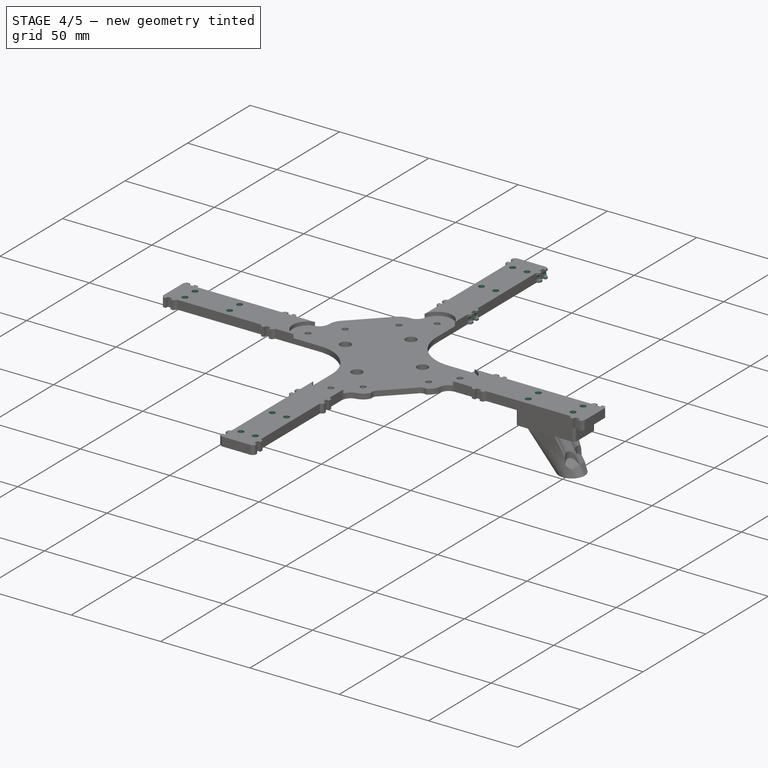
[diagram: stage 4 of 5 — iso view after this stage's code; geometry added in this stage tinted green]
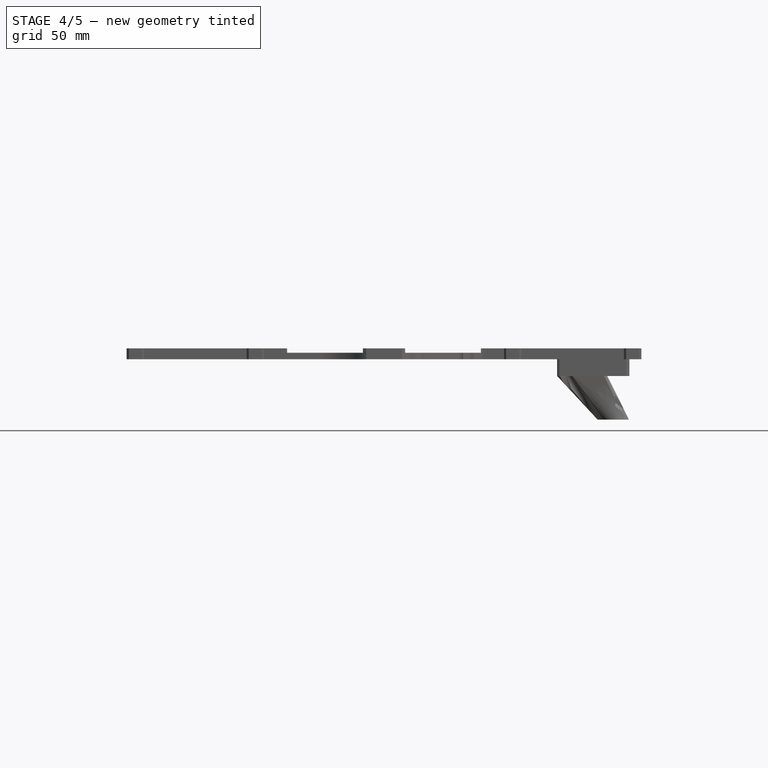
[diagram: stage 4 of 5 — front view after this stage's code; geometry added in this stage tinted green]
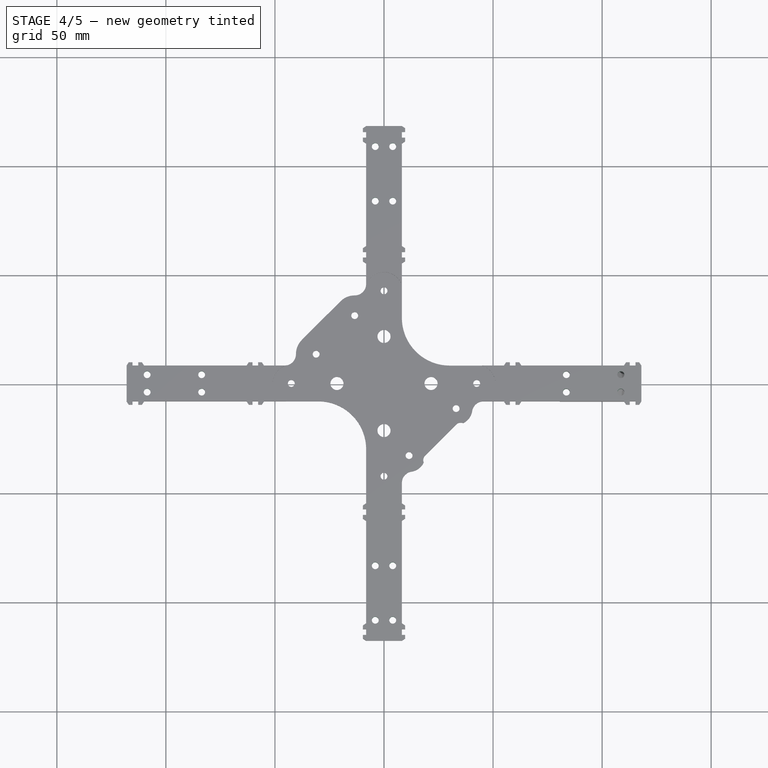
[diagram: stage 4 of 5 — top view after this stage's code; geometry added in this stage tinted green]
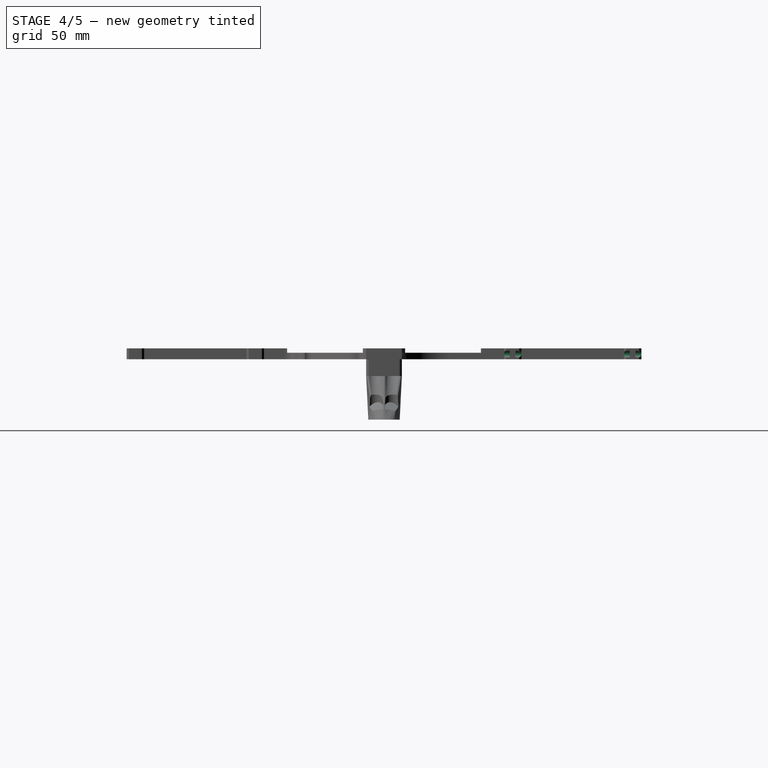
[diagram: stage 4 of 5 — right view after this stage's code; geometry added in this stage tinted green]
FEATURE [Sketcher::SketchObject] Sketch004
  FullyConstrained = true
  MapMode = 5
  Placement = pos=(118,0,0) rot=(0.57735,0.57735,0.57735;2.0944rad)
  Support = -> [Pocket001]
  expr: Constraints[10] = <<dim>>.paw_width / 2 + 1.5
  expr: Constraints[9] = <<dim>>.main_thickness / 2
  sketch-geometry (4):
    g0: LineSegment StartX=13.62 StartY=4 StartZ=0 EndX=13.62 EndY=1 EndZ=0
    g1: LineSegment StartX=13.62 StartY=1 StartZ=0 EndX=9.7 EndY=1 EndZ=0
    g2: LineSegment StartX=13.62 StartY=4 StartZ=0 EndX=9.7 EndY=4 EndZ=0
    g3: ArcOfCircle CenterX=9.7 CenterY=2.5 CenterZ=0 NormalX=0 NormalY=0 NormalZ=1 AngleXU=0 Radius=1.5 StartAngle=1.5708 EndAngle=4.71239
  constraints (11):
    c: Vertical(g0)
    c: Coincident(g1,g0)
    c: Horizontal(g1)
    c: DistanceY(g0,g0) = 3
    c: Coincident(g2,g0)
    c: Horizontal(g2)
    c: Tangent(g3,g2) = -1.5708
    c: Tangent(g3,g1) = 1.5708
    c: DistanceX(g2,g2) = 3.92
    c: DistanceY(g-1,g3) = 2.5
    c: DistanceX(g-1,g3) = 9.7
FEATURE [PartDesign::Pocket] Pocket002
  BaseFeature = -> Pocket001
  Direction = (-1,0,0)
  Length = 65
  Length2 = 5
  Profile = -> Sketch004
  ReferenceAxis = -> Sketch004 [N_Axis]
  Type = 0
  expr: Length = <<dim>>.second_valera_dist + 10 - <<dim>>.first_valera_dist
FEATURE [Sketcher::SketchObject] Sketch005
  FullyConstrained = true
  MapMode = 5
  Placement = pos=(0,118,0) rot=(0,0.707107,0.707107;3.14159rad)
  Support = -> [Pocket002]
  expr: Constraints[10] = <<dim>>.paw_width / 2 + 1.5
  expr: Constraints[9] = <<dim>>.main_thickness / 2
  sketch-geometry (4):
    g0: LineSegment StartX=-9.7 StartY=4 StartZ=0 EndX=-13.44 EndY=4 EndZ=0
    g1: LineSegment StartX=-13.44 StartY=4 StartZ=0 EndX=-13.44 EndY=1 EndZ=0
    g2: LineSegment StartX=-13.44 StartY=1 StartZ=0 EndX=-9.7 EndY=1 EndZ=0
    g3: ArcOfCircle CenterX=-9.7 CenterY=2.5 CenterZ=0 NormalX=0 NormalY=0 NormalZ=1 AngleXU=0 Radius=1.5 StartAngle=4.71239 EndAngle=7.85398
  constraints (11):
    c: Horizontal(g0)
    c: Coincident(g1,g0)
    c: Vertical(g1)
    c: Coincident(g2,g1)
    c: Horizontal(g2)
    c: Tangent(g3,g0) = -1.5708
    c: Tangent(g3,g2) = -1.5708
    c: DistanceX(g0,g0) = 3.74
    c: DistanceY(g1,g1) = 3
    c: DistanceY(g-1,g3) = 2.5
    c: DistanceX(g3,g-1) = 9.7
FEATURE [PartDesign::Pocket] Pocket003
  BaseFeature = -> Pocket002
  Direction = (0,-1,2e-16)
  Length = 65
  Length2 = 5
  Profile = -> Sketch005
  ReferenceAxis = -> Sketch005 [N_Axis]
  Type = 0
  expr: Length = <<dim>>.second_valera_dist + 10 - <<dim>>.first_valera_dist
FEATURE [Sketcher::SketchObject] Sketch006
  FullyConstrained = true
  MapMode = 5
  Placement = pos=(0,0,5) rot=(0,0,1;0rad)
  Support = -> [Pocket003]
  expr: Constraints[10] = <<dim>>.M3_D
  expr: Constraints[11] = <<dim>>.M3_D
  expr: Constraints[15] = <<dim>>.leg_w
  expr: Constraints[16] = <<dim>>.leg_h
  expr: Constraints[17] = <<dim>>.leg_pos
  expr: Constraints[8] = <<dim>>.M3_D
  expr: Constraints[9] = <<dim>>.M3_D
  sketch-geometry (18):
    g0: LineSegment StartX=-113.67 StartY=113.67 StartZ=0 EndX=128.4 EndY=-128.4 EndZ=0
    g1: LineSegment StartX=-117.96 StartY=-117.96 StartZ=0 EndX=105.93 EndY=105.93 EndZ=0
    g2: Circle CenterX=-108.6 CenterY=4 CenterZ=0 NormalX=0 NormalY=0 NormalZ=1 AngleXU=0 Radius=1.575
    g3: Circle CenterX=-83.6 CenterY=4 CenterZ=0 NormalX=0 NormalY=0 NormalZ=1 AngleXU=0 Radius=1.575
    g4: Circle CenterX=-108.6 CenterY=-4 CenterZ=0 NormalX=0 NormalY=0 NormalZ=1 AngleXU=0 Radius=1.575
    g5: Circle CenterX=-83.6 CenterY=-4 CenterZ=0 NormalX=0 NormalY=0 NormalZ=1 AngleXU=0 Radius=1.575
    g6: Circle CenterX=-4 CenterY=108.6 CenterZ=0 NormalX=0 NormalY=0 NormalZ=1 AngleXU=0 Radius=1.525
    g7: Circle CenterX=-4 CenterY=83.6 CenterZ=0 NormalX=0 NormalY=0 NormalZ=1 AngleXU=0 Radius=1.525
    g8: Circle CenterX=4 CenterY=108.6 CenterZ=0 NormalX=0 NormalY=0 NormalZ=1 AngleXU=0 Radius=1.525
    g9: Circle CenterX=4 CenterY=83.6 CenterZ=0 NormalX=0 NormalY=0 NormalZ=1 AngleXU=0 Radius=1.525
    g10: Circle CenterX=4 CenterY=-108.6 CenterZ=0 NormalX=0 NormalY=0 NormalZ=1 AngleXU=0 Radius=1.525
    g11: Circle CenterX=4 CenterY=-83.6 CenterZ=0 NormalX=0 NormalY=0 NormalZ=1 AngleXU=0 Radius=1.525
    g12: Circle CenterX=-4 CenterY=-108.6 CenterZ=0 NormalX=0 NormalY=0 NormalZ=1 AngleXU=0 Radius=1.525
    g13: Circle CenterX=-4 CenterY=-83.6 CenterZ=0 NormalX=0 NormalY=0 NormalZ=1 AngleXU=0 Radius=1.525
    g14: Circle CenterX=108.6 CenterY=4 CenterZ=0 NormalX=0 NormalY=0 NormalZ=1 AngleXU=0 Radius=1.525
    g15: Circle CenterX=83.6 CenterY=4 CenterZ=0 NormalX=0 NormalY=0 NormalZ=1 AngleXU=0 Radius=1.525
    g16: Circle CenterX=108.6 CenterY=-4 CenterZ=0 NormalX=0 NormalY=0 NormalZ=1 AngleXU=0 Radius=1.525
    g17: Circle CenterX=83.6 CenterY=-4 CenterZ=0 NormalX=0 NormalY=0 NormalZ=1 AngleXU=0 Radius=1.525
  constraints (42):
    c: Angle(g1,g-1) = 2.35619
    c: Angle(g-1,g0) = 2.35619
    c: PointOnObject(g-1,g1)
    c: PointOnObject(g-1,g0)
    c: DistanceY(g-1,g0) = 113.67
    c: DistanceY(g-1,g1) = 105.93
    c: DistanceY(g0,g0) = 242.07
    c: DistanceY(g1,g1) = 223.89
    c: Diameter(g2) = 3.15
    c: Diameter(g3) = 3.15
    c: Diameter(g4) = 3.15
    c: Diameter(g5) = 3.15
    c: DistanceY(g2,g3) = 0
    c: Symmetric(g2,g4,g-1)
    c: Symmetric(g3,g5,g-1)
    c: DistanceX(g2,g3) = 25
    c: DistanceY(g4,g2) = 8
    c: DistanceX(g2,g-1) = 108.6
    c: Diameter(g6) = 3.05
    c: Diameter(g7) = 3.05
    c: Diameter(g8) = 3.05
    c: Diameter(g9) = 3.05
    c: Symmetric(g6,g2,g0)
    c: Symmetric(g4,g8,g0)
    c: Symmetric(g7,g3,g0)
    c: Symmetric(g9,g5,g0)
    c: Diameter(g10) = 3.05
    c: Diameter(g11) = 3.05
    c: Diameter(g12) = 3.05
    c: Diameter(g13) = 3.05
    c: Symmetric(g5,g13,g1)
    c: Symmetric(g11,g3,g1)
    c: Symmetric(g12,g4,g1)
    c: Symmetric(g10,g2,g1)
    c: Diameter(g14) = 3.05
    c: Diameter(g15) = 3.05
    c: Diameter(g16) = 3.05
    c: Diameter(g17) = 3.05
    c: Symmetric(g15,g3,g-2)
    c: Symmetric(g5,g17,g-2)
    c: Symmetric(g16,g4,g-2)
    c: Symmetric(g14,g2,g-2)
FEATURE [PartDesign::Hole] Hole001
  BaseFeature = -> Pocket003
  CustomThreadClearance = 0
  Depth = 25
  DepthType = 0
  Diameter = 3.15
  DrillForDepth = false
  DrillPoint = 1
  DrillPointAngle = 118
  HoleCutCountersinkAngle = 90
  HoleCutCustomValues = false
  HoleCutDepth = 0
  HoleCutDiameter = 6.1
  HoleCutType = 0
  ModelThread = false
  Profile = -> Sketch006
  Tapered = false
  TaperedAngle = 90
  ThreadClass = 0
  ThreadDepth = 25
  ThreadDepthType = 0
  ThreadDirection = 0
  ThreadFit = 0
  ThreadSize = 0
  ThreadType = 0
  Threaded = false
  UseCustomThreadClearance = false
  expr: Diameter = <<dim>>.M3_D
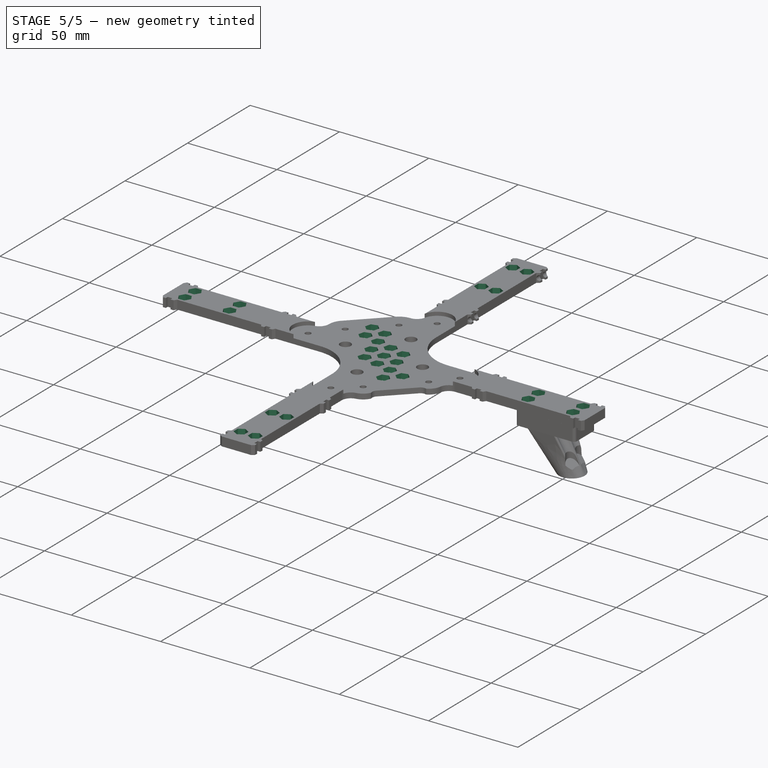
[diagram: stage 5 of 5 — iso view after this stage's code; geometry added in this stage tinted green]
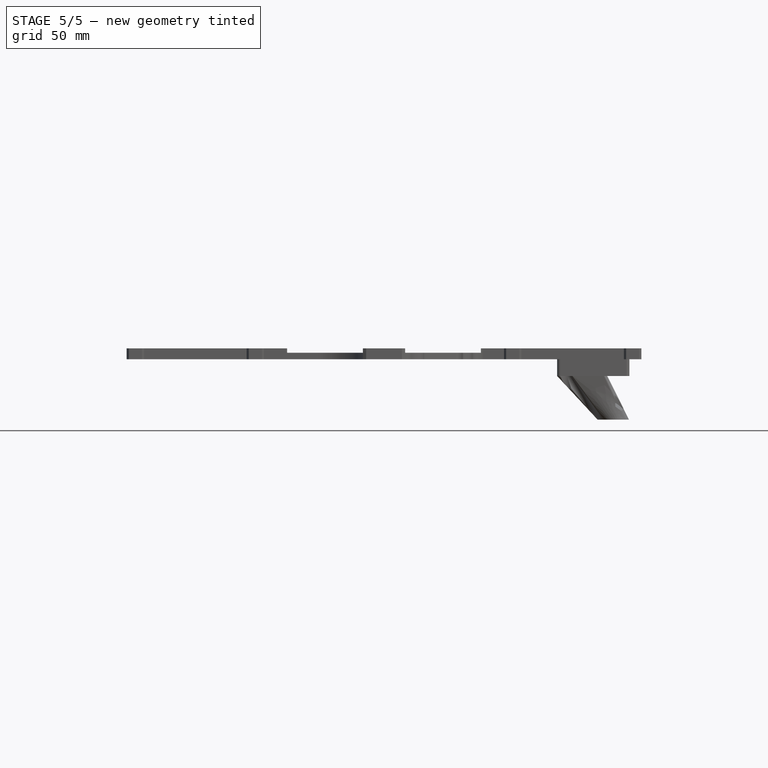
[diagram: stage 5 of 5 — front view after this stage's code; geometry added in this stage tinted green]
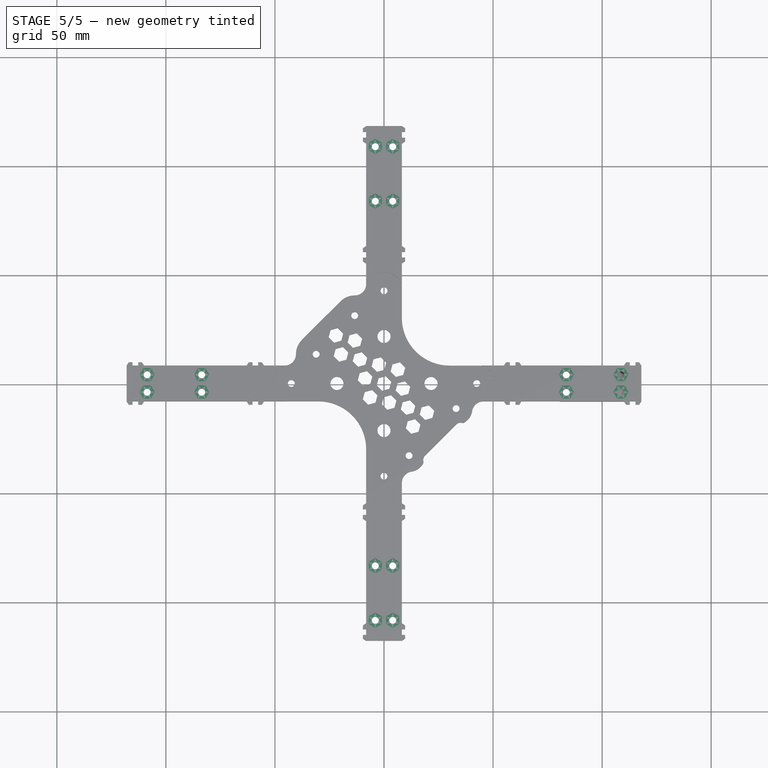
[diagram: stage 5 of 5 — top view after this stage's code; geometry added in this stage tinted green]
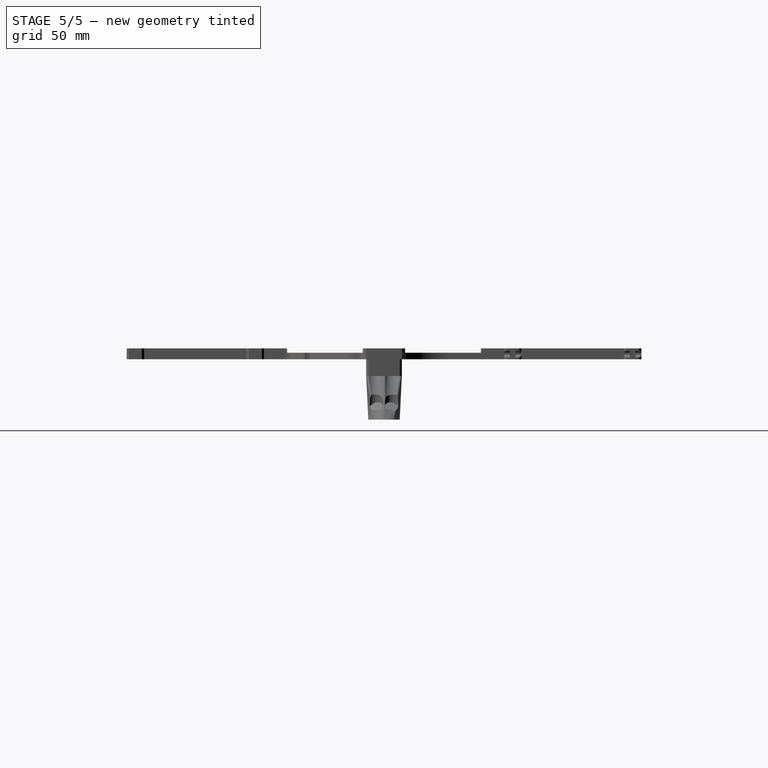
[diagram: stage 5 of 5 — right view after this stage's code; geometry added in this stage tinted green]
FEATURE [Sketcher::SketchObject] Sketch007
  FullyConstrained = true
  MapMode = 5
  Placement = pos=(0,0,5) rot=(0,0,1;0rad)
  Support = -> [Hole001]
  expr: Constraints[68] = <<dim>>.M3_nut_hex
  expr: Constraints[69] = <<dim>>.M3_nut_hex
  expr: Constraints[70] = <<dim>>.M3_nut_hex
  expr: Constraints[71] = <<dim>>.M3_nut_hex
  expr: Constraints[76] = <<dim>>.leg_h
  expr: Constraints[77] = <<dim>>.leg_w
  expr: Constraints[81] = <<dim>>.leg_pos
  sketch-geometry (114):
    g0: LineSegment StartX=-106.868 StartY=1 StartZ=0 EndX=-105.136 EndY=4 EndZ=0
    g1: LineSegment StartX=-105.136 StartY=4 StartZ=0 EndX=-106.868 EndY=7 EndZ=0
    g2: LineSegment StartX=-106.868 StartY=7 StartZ=0 EndX=-110.332 EndY=7 EndZ=0
    g3: LineSegment StartX=-110.332 StartY=7 StartZ=0 EndX=-112.064 EndY=4 EndZ=0
    g4: LineSegment StartX=-112.064 StartY=4 StartZ=0 EndX=-110.332 EndY=1 EndZ=0
    g5: LineSegment StartX=-110.332 StartY=1 StartZ=0 EndX=-106.868 EndY=1 EndZ=0
    g6: Circle CenterX=-108.6 CenterY=4 CenterZ=0 NormalX=0 NormalY=0 NormalZ=1 AngleXU=0 Radius=3.4641
    g7: LineSegment StartX=-81.8679 StartY=1 StartZ=0 EndX=-80.1359 EndY=4 EndZ=0
    g8: LineSegment StartX=-80.1359 StartY=4 StartZ=0 EndX=-81.8679 EndY=7 EndZ=0
    g9: LineSegment StartX=-81.8679 StartY=7 StartZ=0 EndX=-85.3321 EndY=7 EndZ=0
    g10: LineSegment StartX=-85.3321 StartY=7 StartZ=0 EndX=-87.0641 EndY=4 EndZ=0
    g11: LineSegment StartX=-87.0641 StartY=4 StartZ=0 EndX=-85.3321 EndY=1 EndZ=0
    g12: LineSegment StartX=-85.3321 StartY=1 StartZ=0 EndX=-81.8679 EndY=1 EndZ=0
    g13: Circle CenterX=-83.6 CenterY=4 CenterZ=0 NormalX=0 NormalY=0 NormalZ=1 AngleXU=0 Radius=3.4641
    g14: LineSegment StartX=-106.868 StartY=-7 StartZ=0 EndX=-105.136 EndY=-4 EndZ=0
    g15: LineSegment StartX=-105.136 StartY=-4 StartZ=0 EndX=-106.868 EndY=-1 EndZ=0
    g16: LineSegment StartX=-106.868 StartY=-1 StartZ=0 EndX=-110.332 EndY=-1 EndZ=0
    g17: LineSegment StartX=-110.332 StartY=-1 StartZ=0 EndX=-112.064 EndY=-4 EndZ=0
    g18: LineSegment StartX=-112.064 StartY=-4 StartZ=0 EndX=-110.332 EndY=-7 EndZ=0
    g19: LineSegment StartX=-110.332 StartY=-7 StartZ=0 EndX=-106.868 EndY=-7 EndZ=0
    g20: Circle CenterX=-108.6 CenterY=-4 CenterZ=0 NormalX=0 NormalY=0 NormalZ=1 AngleXU=0 Radius=3.4641
    g21: LineSegment StartX=-81.8679 StartY=-7 StartZ=0 EndX=-80.1359 EndY=-4 EndZ=0
    g22: LineSegment StartX=-80.1359 StartY=-4 StartZ=0 EndX=-81.8679 EndY=-1 EndZ=0
    g23: LineSegment StartX=-81.8679 StartY=-1 StartZ=0 EndX=-85.3321 EndY=-1 EndZ=0
    g24: LineSegment StartX=-85.3321 StartY=-1 StartZ=0 EndX=-87.0641 EndY=-4 EndZ=0
    g25: LineSegment StartX=-87.0641 StartY=-4 StartZ=0 EndX=-85.3321 EndY=-7 EndZ=0
    g26: LineSegment StartX=-85.3321 StartY=-7 StartZ=0 EndX=-81.8679 EndY=-7 EndZ=0
    g27: Circle CenterX=-83.6 CenterY=-4 CenterZ=0 NormalX=0 NormalY=0 NormalZ=1 AngleXU=0 Radius=3.4641
    g28: LineSegment StartX=106.868 StartY=1 StartZ=0 EndX=105.136 EndY=4 EndZ=0
    g29: LineSegment StartX=105.136 StartY=4 StartZ=0 EndX=106.868 EndY=7 EndZ=0
    g30: LineSegment StartX=106.868 StartY=7 StartZ=0 EndX=110.332 EndY=7 EndZ=0
    g31: LineSegment StartX=110.332 StartY=7 StartZ=0 EndX=112.064 EndY=4 EndZ=0
    g32: LineSegment StartX=112.064 StartY=4 StartZ=0 EndX=110.332 EndY=1 EndZ=0
    g33: LineSegment StartX=110.332 StartY=1 StartZ=0 EndX=106.868 EndY=1 EndZ=0
    g34: Circle CenterX=108.6 CenterY=4 CenterZ=0 NormalX=0 NormalY=0 NormalZ=1 AngleXU=0 Radius=3.4641
    g35: LineSegment StartX=81.8679 StartY=1 StartZ=0 EndX=80.1359 EndY=4 EndZ=0
    g36: LineSegment StartX=80.1359 StartY=4 StartZ=0 EndX=81.8679 EndY=7 EndZ=0
    g37: LineSegment StartX=81.8679 StartY=7 StartZ=0 EndX=85.3321 EndY=7 EndZ=0
    g38: LineSegment StartX=85.3321 StartY=7 StartZ=0 EndX=87.0641 EndY=4 EndZ=0
    g39: LineSegment StartX=87.0641 StartY=4 StartZ=0 EndX=85.3321 EndY=1 EndZ=0
    g40: LineSegment StartX=85.3321 StartY=1 StartZ=0 EndX=81.8679 EndY=1 EndZ=0
    g41: Circle CenterX=83.6 CenterY=4 CenterZ=0 NormalX=0 NormalY=0 NormalZ=1 AngleXU=0 Radius=3.4641
    g42: LineSegment StartX=106.868 StartY=-7 StartZ=0 EndX=105.136 EndY=-4 EndZ=0
    g43: LineSegment StartX=105.136 StartY=-4 StartZ=0 EndX=106.868 EndY=-1 EndZ=0
    g44: LineSegment StartX=106.868 StartY=-1 StartZ=0 EndX=110.332 EndY=-1 EndZ=0
    g45: LineSegment StartX=110.332 StartY=-1 StartZ=0 EndX=112.064 EndY=-4 EndZ=0
    g46: LineSegment StartX=112.064 StartY=-4 StartZ=0 EndX=110.332 EndY=-7 EndZ=0
    g47: LineSegment StartX=110.332 StartY=-7 StartZ=0 EndX=106.868 EndY=-7 EndZ=0
    g48: Circle CenterX=108.6 CenterY=-4 CenterZ=0 NormalX=0 NormalY=0 NormalZ=1 AngleXU=0 Radius=3.4641
    g49: LineSegment StartX=81.8679 StartY=-7 StartZ=0 EndX=80.1359 EndY=-4 EndZ=0
    g50: LineSegment StartX=80.1359 StartY=-4 StartZ=0 EndX=81.8679 EndY=-1 EndZ=0
    g51: LineSegment StartX=81.8679 StartY=-1 StartZ=0 EndX=85.3321 EndY=-1 EndZ=0
    g52: LineSegment StartX=85.3321 StartY=-1 StartZ=0 EndX=87.0641 EndY=-4 EndZ=0
    g53: LineSegment StartX=87.0641 StartY=-4 StartZ=0 EndX=85.3321 EndY=-7 EndZ=0
    g54: LineSegment StartX=85.3321 StartY=-7 StartZ=0 EndX=81.8679 EndY=-7 EndZ=0
    g55: Circle CenterX=83.6 CenterY=-4 CenterZ=0 NormalX=0 NormalY=0 NormalZ=1 AngleXU=0 Radius=3.4641
    g56: LineSegment StartX=-93.79 StartY=93.79 StartZ=0 EndX=97.94 EndY=-97.94 EndZ=0
    g57: LineSegment StartX=-84.95 StartY=-84.95 StartZ=0 EndX=90.08 EndY=90.08 EndZ=0
    g58: LineSegment StartX=-1 StartY=106.868 StartZ=0 EndX=-4 EndY=105.136 EndZ=0
    g59: LineSegment StartX=-4 StartY=105.136 StartZ=0 EndX=-7 EndY=106.868 EndZ=0
    g60: LineSegment StartX=-7 StartY=106.868 StartZ=0 EndX=-7 EndY=110.332 EndZ=0
    g61: LineSegment StartX=-7 StartY=110.332 StartZ=0 EndX=-4 EndY=112.064 EndZ=0
    g62: LineSegment StartX=-4 StartY=112.064 StartZ=0 EndX=-1 EndY=110.332 EndZ=0
    g63: LineSegment StartX=-1 StartY=110.332 StartZ=0 EndX=-1 EndY=106.868 EndZ=0
    g64: Circle CenterX=-4 CenterY=108.6 CenterZ=0 NormalX=0 NormalY=0 NormalZ=1 AngleXU=0 Radius=3.4641
    g65: LineSegment StartX=-1 StartY=81.8679 StartZ=0 EndX=-4 EndY=80.1359 EndZ=0
    g66: LineSegment StartX=-4 StartY=80.1359 StartZ=0 EndX=-7 EndY=81.8679 EndZ=0
    g67: LineSegment StartX=-7 StartY=81.8679 StartZ=0 EndX=-7 EndY=85.3321 EndZ=0
    g68: LineSegment StartX=-7 StartY=85.3321 StartZ=0 EndX=-4 EndY=87.0641 EndZ=0
    g69: LineSegment StartX=-4 StartY=87.0641 StartZ=0 EndX=-1 EndY=85.3321 EndZ=0
    g70: LineSegment StartX=-1 StartY=85.3321 StartZ=0 EndX=-1 EndY=81.8679 EndZ=0
    g71: Circle CenterX=-4 CenterY=83.6 CenterZ=0 NormalX=0 NormalY=0 NormalZ=1 AngleXU=0 Radius=3.4641
    g72: LineSegment StartX=7 StartY=106.868 StartZ=0 EndX=4 EndY=105.136 EndZ=0
    g73: LineSegment StartX=4 StartY=105.136 StartZ=0 EndX=1 EndY=106.868 EndZ=0
    g74: LineSegment StartX=1 StartY=106.868 StartZ=0 EndX=1 EndY=110.332 EndZ=0
    g75: LineSegment StartX=1 StartY=110.332 StartZ=0 EndX=4 EndY=112.064 EndZ=0
    g76: LineSegment StartX=4 StartY=112.064 StartZ=0 EndX=7 EndY=110.332 EndZ=0
    g77: LineSegment StartX=7 StartY=110.332 StartZ=0 EndX=7 EndY=106.868 EndZ=0
    g78: Circle CenterX=4 CenterY=108.6 CenterZ=0 NormalX=0 NormalY=0 NormalZ=1 AngleXU=0 Radius=3.4641
    g79: LineSegment StartX=7 StartY=81.8679 StartZ=0 EndX=4 EndY=80.1359 EndZ=0
    g80: LineSegment StartX=4 StartY=80.1359 StartZ=0 EndX=1 EndY=81.8679 EndZ=0
    g81: LineSegment StartX=1 StartY=81.8679 StartZ=0 EndX=1 EndY=85.3321 EndZ=0
    g82: LineSegment StartX=1 StartY=85.3321 StartZ=0 EndX=4 EndY=87.0641 EndZ=0
    g83: LineSegment StartX=4 StartY=87.0641 StartZ=0 EndX=7 EndY=85.3321 EndZ=0
    g84: LineSegment StartX=7 StartY=85.3321 StartZ=0 EndX=7 EndY=81.8679 EndZ=0
    g85: Circle CenterX=4 CenterY=83.6 CenterZ=0 NormalX=0 NormalY=0 NormalZ=1 AngleXU=0 Radius=3.4641
    g86: LineSegment StartX=1 StartY=-106.868 StartZ=0 EndX=4 EndY=-105.136 EndZ=0
    g87: LineSegment StartX=4 StartY=-105.136 StartZ=0 EndX=7 EndY=-106.868 EndZ=0
    g88: LineSegment StartX=7 StartY=-106.868 StartZ=0 EndX=7 EndY=-110.332 EndZ=0
    g89: LineSegment StartX=7 StartY=-110.332 StartZ=0 EndX=4 EndY=-112.064 EndZ=0
    g90: LineSegment StartX=4 StartY=-112.064 StartZ=0 EndX=1 EndY=-110.332 EndZ=0
    g91: LineSegment StartX=1 StartY=-110.332 StartZ=0 EndX=1 EndY=-106.868 EndZ=0
    g92: Circle CenterX=4 CenterY=-108.6 CenterZ=0 NormalX=0 NormalY=0 NormalZ=1 AngleXU=0 Radius=3.4641
    g93: LineSegment StartX=1 StartY=-81.8679 StartZ=0 EndX=4 EndY=-80.1359 EndZ=0
    g94: LineSegment StartX=4 StartY=-80.1359 StartZ=0 EndX=7 EndY=-81.8679 EndZ=0
    g95: LineSegment StartX=7 StartY=-81.8679 StartZ=0 EndX=7 EndY=-85.3321 EndZ=0
    g96: LineSegment StartX=7 StartY=-85.3321 StartZ=0 EndX=4 EndY=-87.0641 EndZ=0
    g97: LineSegment StartX=4 StartY=-87.0641 StartZ=0 EndX=1 EndY=-85.3321 EndZ=0
    g98: LineSegment StartX=1 StartY=-85.3321 StartZ=0 EndX=1 EndY=-81.8679 EndZ=0
    g99: Circle CenterX=4 CenterY=-83.6 CenterZ=0 NormalX=0 NormalY=0 NormalZ=1 AngleXU=0 Radius=3.4641
    g100: LineSegment StartX=-7 StartY=-106.868 StartZ=0 EndX=-4 EndY=-105.136 EndZ=0
    g101: LineSegment StartX=-4 StartY=-105.136 StartZ=0 EndX=-1 EndY=-106.868 EndZ=0
    g102: LineSegment StartX=-1 StartY=-106.868 StartZ=0 EndX=-1 EndY=-110.332 EndZ=0
    g103: LineSegment StartX=-1 StartY=-110.332 StartZ=0 EndX=-4 EndY=-112.064 EndZ=0
    g104: LineSegment StartX=-4 StartY=-112.064 StartZ=0 EndX=-7 EndY=-110.332 EndZ=0
    g105: LineSegment StartX=-7 StartY=-110.332 StartZ=0 EndX=-7 EndY=-106.868 EndZ=0
    g106: Circle CenterX=-4 CenterY=-108.6 CenterZ=0 NormalX=0 NormalY=0 NormalZ=1 AngleXU=0 Radius=3.4641
    g107: LineSegment StartX=-7 StartY=-81.8679 StartZ=0 EndX=-4 EndY=-80.1359 EndZ=0
    g108: LineSegment StartX=-4 StartY=-80.1359 StartZ=0 EndX=-1 EndY=-81.8679 EndZ=0
    g109: LineSegment StartX=-1 StartY=-81.8679 StartZ=0 EndX=-1 EndY=-85.3321 EndZ=0
    g110: LineSegment StartX=-1 StartY=-85.3321 StartZ=0 EndX=-4 EndY=-87.0641 EndZ=0
    g111: LineSegment StartX=-4 StartY=-87.0641 StartZ=0 EndX=-7 EndY=-85.3321 EndZ=0
    g112: LineSegment StartX=-7 StartY=-85.3321 StartZ=0 EndX=-7 EndY=-81.8679 EndZ=0
    g113: Circle CenterX=-4 CenterY=-83.6 CenterZ=0 NormalX=0 NormalY=0 NormalZ=1 AngleXU=0 Radius=3.4641
  constraints (266):
    c: Coincident(g0,g1)
    c: Coincident(g1,g2)
    c: Coincident(g2,g3)
    c: Coincident(g3,g4)
    c: Coincident(g4,g5)
    c: Coincident(g5,g0)
    c: Equal(g0, g1-g5) x5
    c: PointOnObject(g0,g6)
    c: PointOnObject(g1,g6)
    c: PointOnObject(g2,g6)
    c: PointOnObject(g3,g6)
    c: PointOnObject(g4,g6)
    c: PointOnObject(g5,g6)
    c: Coincident(g7,g8)
    c: Coincident(g8,g9)
    c: Coincident(g9,g10)
    c: Coincident(g10,g11)
    c: Coincident(g11,g12)
    c: Coincident(g12,g7)
    c: Equal(g7, g8-g12) x5
    c: PointOnObject(g7,g13)
    c: PointOnObject(g8,g13)
    c: PointOnObject(g9,g13)
    c: PointOnObject(g10,g13)
    c: PointOnObject(g11,g13)
    c: PointOnObject(g12,g13)
    c: Coincident(g14,g15)
    c: Coincident(g15,g16)
    c: Coincident(g16,g17)
    c: Coincident(g17,g18)
    c: Coincident(g18,g19)
    c: Coincident(g19,g14)
    c: Equal(g14, g15-g19) x5
    c: PointOnObject(g14,g20)
    c: PointOnObject(g15,g20)
    c: PointOnObject(g16,g20)
    c: PointOnObject(g17,g20)
    c: PointOnObject(g18,g20)
    c: PointOnObject(g19,g20)
    c: Coincident(g21,g22)
    c: Coincident(g22,g23)
    c: Coincident(g23,g24)
    c: Coincident(g24,g25)
    c: Coincident(g25,g26)
    c: Coincident(g26,g21)
    c: Equal(g21, g22-g26) x5
    c: PointOnObject(g21,g27)
    c: PointOnObject(g22,g27)
    c: PointOnObject(g23,g27)
    c: PointOnObject(g24,g27)
    c: PointOnObject(g25,g27)
    c: PointOnObject(g26,g27)
    c: Distance(g6,g2) = 3
    c: Distance(g13,g9) = 3
    c: Distance(g20,g15) = 3
    c: Distance(g27,g23) = 3
    c: Horizontal(g5)
    c: Horizontal(g12)
    c: Horizontal(g26)
    c: Horizontal(g19)
    c: DistanceY(g27,g13) = 8
    c: DistanceX(g6,g13) = 25
    c: DistanceY(g13,g6) = 0
    c: Symmetric(g13,g27,g-1)
    c: Symmetric(g6,g20,g-1)
    c: DistanceX(g6,g-1) = 108.6
    c: Coincident(g28,g29)
    c: Coincident(g29,g30)
    c: Coincident(g30,g31)
    c: Coincident(g31,g32)
    c: Coincident(g32,g33)
    c: Coincident(g33,g28)
    c: Equal(g28, g29-g33) x5
    c: PointOnObject(g28,g34)
    c: PointOnObject(g29,g34)
    c: PointOnObject(g30,g34)
    c: PointOnObject(g31,g34)
    c: PointOnObject(g32,g34)
    c: PointOnObject(g33,g34)
    c: Coincident(g35,g36)
    c: Coincident(g36,g37)
    c: Coincident(g37,g38)
    c: Coincident(g38,g39)
    c: Coincident(g39,g40)
    c: Coincident(g40,g35)
    c: Equal(g35, g36-g40) x5
    c: PointOnObject(g35,g41)
    c: PointOnObject(g36,g41)
    c: PointOnObject(g37,g41)
    c: PointOnObject(g38,g41)
    c: PointOnObject(g39,g41)
    c: PointOnObject(g40,g41)
    c: Coincident(g42,g43)
    c: Coincident(g43,g44)
    c: Coincident(g44,g45)
    c: Coincident(g45,g46)
    c: Coincident(g46,g47)
    c: Coincident(g47,g42)
    c: Equal(g42, g43-g47) x5
    c: PointOnObject(g42,g48)
    c: PointOnObject(g43,g48)
    c: PointOnObject(g44,g48)
    c: PointOnObject(g45,g48)
    c: PointOnObject(g46,g48)
    c: PointOnObject(g47,g48)
    c: Coincident(g49,g50)
    c: Coincident(g50,g51)
    c: Coincident(g51,g52)
    c: Coincident(g52,g53)
    c: Coincident(g53,g54)
    c: Coincident(g54,g49)
    c: Equal(g49, g50-g54) x5
    c: PointOnObject(g49,g55)
    c: PointOnObject(g50,g55)
    c: PointOnObject(g51,g55)
    c: PointOnObject(g52,g55)
    c: PointOnObject(g53,g55)
    c: PointOnObject(g54,g55)
    c: Distance(g34,g30) = 3
    c: Distance(g41,g37) = 3
    c: Distance(g48,g43) = 3
    c: Distance(g55,g51) = 3
    c: Horizontal(g33)
    c: Horizontal(g40)
    c: Horizontal(g54)
    c: Horizontal(g47)
    c: Symmetric(g13,g41,g-2)
    c: Symmetric(g55,g27,g-2)
    c: Symmetric(g20,g48,g-2)
    c: Symmetric(g34,g6,g-2)
    c: PointOnObject(g-1,g57)
    c: PointOnObject(g-1,g56)
    c: Angle(g56,g-1) = 0.785398
    c: Angle(g57,g-2) = 0.785398
    c: DistanceY(g57,g57) = 175.03
    c: DistanceY(g56,g56) = 191.73
    c: DistanceY(g-1,g56) = 93.79
    c: DistanceY(g-1,g57) = 90.08
    c: Coincident(g58,g59)
    c: Coincident(g59,g60)
    c: Coincident(g60,g61)
    c: Coincident(g61,g62)
    c: Coincident(g62,g63)
    c: Coincident(g63,g58)
    c: Equal(g58, g59-g63) x5
    c: PointOnObject(g58,g64)
    c: PointOnObject(g59,g64)
    c: PointOnObject(g60,g64)
    c: PointOnObject(g61,g64)
    c: PointOnObject(g62,g64)
    c: PointOnObject(g63,g64)
    c: Coincident(g65,g66)
    c: Coincident(g66,g67)
    c: Coincident(g67,g68)
    c: Coincident(g68,g69)
    c: Coincident(g69,g70)
    c: Coincident(g70,g65)
    c: Equal(g65, g66-g70) x5
    c: PointOnObject(g65,g71)
    c: PointOnObject(g66,g71)
    c: PointOnObject(g67,g71)
    c: PointOnObject(g68,g71)
    c: PointOnObject(g69,g71)
    c: PointOnObject(g70,g71)
    c: Coincident(g72,g73)
    c: Coincident(g73,g74)
    c: Coincident(g74,g75)
    c: Coincident(g75,g76)
    c: Coincident(g76,g77)
    c: Coincident(g77,g72)
    c: Equal(g72, g73-g77) x5
    c: PointOnObject(g72,g78)
    c: PointOnObject(g73,g78)
    c: PointOnObject(g74,g78)
    c: PointOnObject(g75,g78)
    c: PointOnObject(g76,g78)
    c: PointOnObject(g77,g78)
    c: Coincident(g79,g80)
    c: Coincident(g80,g81)
    c: Coincident(g81,g82)
    c: Coincident(g82,g83)
    c: Coincident(g83,g84)
    c: Coincident(g84,g79)
    c: Equal(g79, g80-g84) x5
    c: PointOnObject(g79,g85)
    c: PointOnObject(g80,g85)
    c: PointOnObject(g81,g85)
    c: PointOnObject(g82,g85)
    c: PointOnObject(g83,g85)
    c: PointOnObject(g84,g85)
    c: Distance(g64,g60) = 3
    c: Distance(g71,g67) = 3
    c: Distance(g78,g73) = 3
    c: Distance(g85,g81) = 3
    c: Symmetric(g71,g13,g56)
    c: Symmetric(g85,g27,g56)
    c: Symmetric(g64,g6,g56)
    c: Symmetric(g78,g20,g56)
    c: Vertical(g70)
    c: Vertical(g81)
    c: Vertical(g63)
    c: Vertical(g74)
    c: Coincident(g86,g87)
    c: Coincident(g87,g88)
    c: Coincident(g88,g89)
    c: Coincident(g89,g90)
    c: Coincident(g90,g91)
    c: Coincident(g91,g86)
    c: Equal(g86, g87-g91) x5
    c: PointOnObject(g86,g92)
    c: PointOnObject(g87,g92)
    c: PointOnObject(g88,g92)
    c: PointOnObject(g89,g92)
    c: PointOnObject(g90,g92)
    c: PointOnObject(g91,g92)
    c: Coincident(g93,g94)
    c: Coincident(g94,g95)
    c: Coincident(g95,g96)
    c: Coincident(g96,g97)
    c: Coincident(g97,g98)
    c: Coincident(g98,g93)
    c: Equal(g93, g94-g98) x5
    c: PointOnObject(g93,g99)
    c: PointOnObject(g94,g99)
    c: PointOnObject(g95,g99)
    c: PointOnObject(g96,g99)
    c: PointOnObject(g97,g99)
    c: PointOnObject(g98,g99)
    c: Coincident(g100,g101)
    c: Coincident(g101,g102)
    c: Coincident(g102,g103)
    c: Coincident(g103,g104)
    c: Coincident(g104,g105)
    c: Coincident(g105,g100)
    c: Equal(g100, g101-g105) x5
    c: PointOnObject(g100,g106)
    c: PointOnObject(g101,g106)
    c: PointOnObject(g102,g106)
    c: PointOnObject(g103,g106)
    c: PointOnObject(g104,g106)
    c: PointOnObject(g105,g106)
    c: Coincident(g107,g108)
    c: Coincident(g108,g109)
    c: Coincident(g109,g110)
    c: Coincident(g110,g111)
    c: Coincident(g111,g112)
    c: Coincident(g112,g107)
    c: Equal(g107, g108-g112) x5
    c: PointOnObject(g107,g113)
    c: PointOnObject(g108,g113)
    c: PointOnObject(g109,g113)
    c: PointOnObject(g110,g113)
    c: PointOnObject(g111,g113)
    c: PointOnObject(g112,g113)
    c: Distance(g92,g88) = 3
    c: Distance(g99,g95) = 3
    c: Distance(g106,g101) = 3
    c: Distance(g113,g109) = 3
    c: Symmetric(g113,g27,g57)
    c: Symmetric(g99,g13,g57)
    c: Symmetric(g20,g106,g57)
    c: Symmetric(g92,g6,g57)
    c: Vertical(g109)
    c: Vertical(g98)
    c: Vertical(g102)
    c: Vertical(g91)
FEATURE [PartDesign::Pocket] Pocket004
  BaseFeature = -> Hole001
  Direction = (0,0,-1)
  Length = 3
  Length2 = 5
  Profile = -> Sketch007
  ReferenceAxis = -> Sketch007 [N_Axis]
  Type = 0
  expr: Length = <<dim>>.M3_nut_depth
FEATURE [Sketcher::SketchObject] Sketch008
  FullyConstrained = true
  MapMode = 5
  Placement = pos=(0,0,2.95) rot=(0,0,1;0rad)
  Support = -> [Pocket004]
  sketch-geometry (113):
    g0: LineSegment StartX=-18.6993 StartY=22.942 StartZ=0 EndX=-21.1488 EndY=25.3915 EndZ=0
    g1: LineSegment StartX=-21.1488 StartY=25.3915 StartZ=0 EndX=-24.4949 EndY=24.4949 EndZ=0
    g2: LineSegment StartX=-24.4949 StartY=24.4949 StartZ=0 EndX=-25.3915 EndY=21.1488 EndZ=0
    g3: LineSegment StartX=-25.3915 StartY=21.1488 StartZ=0 EndX=-22.942 EndY=18.6993 EndZ=0
    g4: LineSegment StartX=-22.942 StartY=18.6993 StartZ=0 EndX=-19.5959 EndY=19.5959 EndZ=0
    g5: LineSegment StartX=-19.5959 StartY=19.5959 StartZ=0 EndX=-18.6993 EndY=22.942 EndZ=0
    g6: Circle CenterX=-22.0454 CenterY=22.0454 CenterZ=0 NormalX=0 NormalY=0 NormalZ=1 AngleXU=0 Radius=3.4641
    g7: LineSegment StartX=-46.44 StartY=46.44 StartZ=0 EndX=100.96 EndY=-100.96 EndZ=0
    g8: LineSegment StartX=-16.37 StartY=14.2487 StartZ=0 EndX=-18.8195 EndY=16.6981 EndZ=0
    g9: LineSegment StartX=-18.8195 StartY=16.6981 StartZ=0 EndX=-22.1655 EndY=15.8016 EndZ=0
    g10: LineSegment StartX=-22.1655 StartY=15.8016 StartZ=0 EndX=-23.0621 EndY=12.4555 EndZ=0
    g11: LineSegment StartX=-23.0621 StartY=12.4555 StartZ=0 EndX=-20.6126 EndY=10.006 EndZ=0
    g12: LineSegment StartX=-20.6126 StartY=10.006 StartZ=0 EndX=-17.2665 EndY=10.9026 EndZ=0
    g13: LineSegment StartX=-17.2665 StartY=10.9026 StartZ=0 EndX=-16.37 EndY=14.2487 EndZ=0
    g14: Circle CenterX=-19.716 CenterY=13.3521 CenterZ=0 NormalX=0 NormalY=0 NormalZ=1 AngleXU=0 Radius=3.4641
    g15: LineSegment StartX=-19.5959 StartY=19.5959 StartZ=0 EndX=-18.8195 EndY=16.6981 EndZ=0
    g16: LineSegment StartX=-10.006 StartY=20.6126 StartZ=0 EndX=-12.4555 EndY=23.0621 EndZ=0
    g17: LineSegment StartX=-12.4555 StartY=23.0621 StartZ=0 EndX=-15.8016 EndY=22.1655 EndZ=0
    g18: LineSegment StartX=-15.8016 StartY=22.1655 StartZ=0 EndX=-16.6981 EndY=18.8195 EndZ=0
    g19: LineSegment StartX=-16.6981 StartY=18.8195 StartZ=0 EndX=-14.2487 EndY=16.37 EndZ=0
    g20: LineSegment StartX=-14.2487 StartY=16.37 StartZ=0 EndX=-10.9026 EndY=17.2665 EndZ=0
    g21: LineSegment StartX=-10.9026 StartY=17.2665 StartZ=0 EndX=-10.006 EndY=20.6126 EndZ=0
    g22: Circle CenterX=-13.3521 CenterY=19.716 CenterZ=0 NormalX=0 NormalY=0 NormalZ=1 AngleXU=0 Radius=3.4641
    g23: LineSegment StartX=-7.67664 StartY=11.9193 StartZ=0 EndX=-10.1261 EndY=14.3688 EndZ=0
    g24: LineSegment StartX=-10.1261 StartY=14.3688 StartZ=0 EndX=-13.4722 EndY=13.4722 EndZ=0
    g25: LineSegment StartX=-13.4722 StartY=13.4722 StartZ=0 EndX=-14.3688 EndY=10.1261 EndZ=0
    g26: LineSegment StartX=-14.3688 StartY=10.1261 StartZ=0 EndX=-11.9193 EndY=7.67664 EndZ=0
    g27: LineSegment StartX=-11.9193 StartY=7.67664 StartZ=0 EndX=-8.57321 EndY=8.57321 EndZ=0
    g28: LineSegment StartX=-8.57321 StartY=8.57321 StartZ=0 EndX=-7.67664 EndY=11.9193 EndZ=0
    g29: Circle CenterX=-11.0227 CenterY=11.0227 CenterZ=0 NormalX=0 NormalY=0 NormalZ=1 AngleXU=0 Radius=3.4641
    g30: LineSegment StartX=-10.9026 StartY=17.2665 StartZ=0 EndX=-10.1261 EndY=14.3688 EndZ=0
    g31: LineSegment StartX=-15.8016 StartY=22.1655 StartZ=0 EndX=-18.6993 EndY=22.942 EndZ=0
    g32: LineSegment StartX=1.01669 StartY=9.58991 StartZ=0 EndX=-1.4328 EndY=12.0394 EndZ=0
    g33: LineSegment StartX=-1.4328 StartY=12.0394 StartZ=0 EndX=-4.77886 EndY=11.1428 EndZ=0
    g34: LineSegment StartX=-4.77886 StartY=11.1428 StartZ=0 EndX=-5.67544 EndY=7.79676 EndZ=0
    g35: LineSegment StartX=-5.67544 StartY=7.79676 StartZ=0 EndX=-3.22595 EndY=5.34727 EndZ=0
    g36: LineSegment StartX=-3.22595 StartY=5.34727 StartZ=0 EndX=0.120118 EndY=6.24384 EndZ=0
    g37: LineSegment StartX=0.120118 StartY=6.24384 StartZ=0 EndX=1.01669 EndY=9.58991 EndZ=0
    g38: Circle CenterX=-2.32937 CenterY=8.69333 CenterZ=0 NormalX=0 NormalY=0 NormalZ=1 AngleXU=0 Radius=3.4641
    g39: LineSegment StartX=9.71003 StartY=7.26054 StartZ=0 EndX=7.26054 EndY=9.71003 EndZ=0
    g40: LineSegment StartX=7.26054 StartY=9.71003 StartZ=0 EndX=3.91447 EndY=8.81345 EndZ=0
    g41: LineSegment StartX=3.91447 StartY=8.81345 StartZ=0 EndX=3.0179 EndY=5.46739 EndZ=0
    g42: LineSegment StartX=3.0179 StartY=5.46739 StartZ=0 EndX=5.46739 EndY=3.0179 EndZ=0
    g43: LineSegment StartX=5.46739 StartY=3.0179 StartZ=0 EndX=8.81345 EndY=3.91447 EndZ=0
    g44: LineSegment StartX=8.81345 StartY=3.91447 StartZ=0 EndX=9.71003 EndY=7.26054 EndZ=0
    g45: Circle CenterX=6.36396 CenterY=6.36396 CenterZ=0 NormalX=0 NormalY=0 NormalZ=1 AngleXU=0 Radius=3.4641
    g46: LineSegment StartX=-5.34727 StartY=3.22595 StartZ=0 EndX=-7.79676 EndY=5.67544 EndZ=0
    g47: LineSegment StartX=-7.79676 StartY=5.67544 StartZ=0 EndX=-11.1428 EndY=4.77886 EndZ=0
    g48: LineSegment StartX=-11.1428 StartY=4.77886 StartZ=0 EndX=-12.0394 EndY=1.4328 EndZ=0
    g49: LineSegment StartX=-12.0394 StartY=1.4328 StartZ=0 EndX=-9.58991 EndY=-1.01669 EndZ=0
    g50: LineSegment StartX=-9.58991 StartY=-1.01669 StartZ=0 EndX=-6.24384 EndY=-0.120118 EndZ=0
    g51: LineSegment StartX=-6.24384 StartY=-0.120118 StartZ=0 EndX=-5.34727 EndY=3.22595 EndZ=0
    g52: Circle CenterX=-8.69333 CenterY=2.32937 CenterZ=0 NormalX=0 NormalY=0 NormalZ=1 AngleXU=0 Radius=3.4641
    g53: LineSegment StartX=-3.0179 StartY=-5.46739 StartZ=0 EndX=-5.46739 EndY=-3.0179 EndZ=0
    g54: LineSegment StartX=-5.46739 StartY=-3.0179 StartZ=0 EndX=-8.81345 EndY=-3.91447 EndZ=0
    g55: LineSegment StartX=-8.81345 StartY=-3.91447 StartZ=0 EndX=-9.71003 EndY=-7.26054 EndZ=0
    g56: LineSegment StartX=-9.71003 StartY=-7.26054 StartZ=0 EndX=-7.26054 EndY=-9.71003 EndZ=0
    g57: LineSegment StartX=-7.26054 StartY=-9.71003 StartZ=0 EndX=-3.91447 EndY=-8.81345 EndZ=0
    g58: LineSegment StartX=-3.91447 StartY=-8.81345 StartZ=0 EndX=-3.0179 EndY=-5.46739 EndZ=0
    g59: Circle CenterX=-6.36396 CenterY=-6.36396 CenterZ=0 NormalX=0 NormalY=0 NormalZ=1 AngleXU=0 Radius=3.4641
    g60: LineSegment StartX=-6.24384 StartY=-0.120118 StartZ=0 EndX=-5.46739 EndY=-3.0179 EndZ=0
    g61: LineSegment StartX=3.34607 StartY=0.896575 StartZ=0 EndX=0.896575 EndY=3.34607 EndZ=0
    g62: LineSegment StartX=0.896575 StartY=3.34607 StartZ=0 EndX=-2.44949 EndY=2.44949 EndZ=0
    g63: LineSegment StartX=-2.44949 StartY=2.44949 StartZ=0 EndX=-3.34607 EndY=-0.896575 EndZ=0
    g64: LineSegment StartX=-3.34607 StartY=-0.896575 StartZ=0 EndX=-0.896575 EndY=-3.34607 EndZ=0
    g65: LineSegment StartX=-0.896575 StartY=-3.34607 StartZ=0 EndX=2.44949 EndY=-2.44949 EndZ=0
    g66: LineSegment StartX=2.44949 StartY=-2.44949 StartZ=0 EndX=3.34607 EndY=0.896575 EndZ=0
    g67: Circle CenterX=-3.1e-15 CenterY=-8e-15 CenterZ=0 NormalX=0 NormalY=0 NormalZ=1 AngleXU=0 Radius=3.4641
    g68: LineSegment StartX=5.67544 StartY=-7.79676 StartZ=0 EndX=3.22595 EndY=-5.34727 EndZ=0
    g69: LineSegment StartX=3.22595 StartY=-5.34727 StartZ=0 EndX=-0.120118 EndY=-6.24384 EndZ=0
    g70: LineSegment StartX=-0.120118 StartY=-6.24384 StartZ=0 EndX=-1.01669 EndY=-9.58991 EndZ=0
    g71: LineSegment StartX=-1.01669 StartY=-9.58991 StartZ=0 EndX=1.4328 EndY=-12.0394 EndZ=0
    g72: LineSegment StartX=1.4328 StartY=-12.0394 StartZ=0 EndX=4.77886 EndY=-11.1428 EndZ=0
    g73: LineSegment StartX=4.77886 StartY=-11.1428 StartZ=0 EndX=5.67544 EndY=-7.79676 EndZ=0
    g74: Circle CenterX=2.32937 CenterY=-8.69333 CenterZ=0 NormalX=0 NormalY=0 NormalZ=1 AngleXU=0 Radius=3.4641
    g75: LineSegment StartX=2.44949 StartY=-2.44949 StartZ=0 EndX=3.22595 EndY=-5.34727 EndZ=0
    g76: LineSegment StartX=-2.44949 StartY=2.44949 StartZ=0 EndX=-5.34727 EndY=3.22595 EndZ=0
    g77: LineSegment StartX=-7.67664 StartY=11.9193 StartZ=0 EndX=-4.77886 EndY=11.1428 EndZ=0
    g78: LineSegment StartX=3.91447 StartY=8.81345 StartZ=0 EndX=1.01669 EndY=9.58991 EndZ=0
    g79: LineSegment StartX=-5.67544 StartY=7.79676 StartZ=0 EndX=-7.79676 EndY=5.67544 EndZ=0
    g80: LineSegment StartX=12.0394 StartY=-1.4328 StartZ=0 EndX=9.58991 EndY=1.01669 EndZ=0
    g81: LineSegment StartX=9.58991 StartY=1.01669 StartZ=0 EndX=6.24384 EndY=0.120118 EndZ=0
    g82: LineSegment StartX=6.24384 StartY=0.120118 StartZ=0 EndX=5.34727 EndY=-3.22595 EndZ=0
    g83: LineSegment StartX=5.34727 StartY=-3.22595 StartZ=0 EndX=7.79676 EndY=-5.67544 EndZ=0
    g84: LineSegment StartX=7.79676 StartY=-5.67544 StartZ=0 EndX=11.1428 EndY=-4.77886 EndZ=0
    g85: LineSegment StartX=11.1428 StartY=-4.77886 StartZ=0 EndX=12.0394 EndY=-1.4328 EndZ=0
    g86: Circle CenterX=8.69333 CenterY=-2.32937 CenterZ=0 NormalX=0 NormalY=0 NormalZ=1 AngleXU=0 Radius=3.4641
    g87: LineSegment StartX=16.37 StartY=-14.2487 StartZ=0 EndX=18.8195 EndY=-16.6981 EndZ=0
    g88: LineSegment StartX=18.8195 StartY=-16.6981 StartZ=0 EndX=22.1655 EndY=-15.8016 EndZ=0
    g89: LineSegment StartX=22.1655 StartY=-15.8016 StartZ=0 EndX=23.0621 EndY=-12.4555 EndZ=0
    g90: LineSegment StartX=23.0621 StartY=-12.4555 StartZ=0 EndX=20.6126 EndY=-10.006 EndZ=0
    g91: LineSegment StartX=20.6126 StartY=-10.006 StartZ=0 EndX=17.2665 EndY=-10.9026 EndZ=0
    g92: LineSegment StartX=17.2665 StartY=-10.9026 StartZ=0 EndX=16.37 EndY=-14.2487 EndZ=0
    g93: Circle CenterX=19.716 CenterY=-13.3521 CenterZ=0 NormalX=0 NormalY=0 NormalZ=1 AngleXU=0 Radius=3.4641
    g94: LineSegment StartX=10.006 StartY=-20.6126 StartZ=0 EndX=12.4555 EndY=-23.0621 EndZ=0
    g95: LineSegment StartX=12.4555 StartY=-23.0621 StartZ=0 EndX=15.8016 EndY=-22.1655 EndZ=0
    g96: LineSegment StartX=15.8016 StartY=-22.1655 StartZ=0 EndX=16.6981 EndY=-18.8195 EndZ=0
    g97: LineSegment StartX=16.6981 StartY=-18.8195 StartZ=0 EndX=14.2487 EndY=-16.37 EndZ=0
    g98: LineSegment StartX=14.2487 StartY=-16.37 StartZ=0 EndX=10.9026 EndY=-17.2665 EndZ=0
    g99: LineSegment StartX=10.9026 StartY=-17.2665 StartZ=0 EndX=10.006 EndY=-20.6126 EndZ=0
    g100: Circle CenterX=13.3521 CenterY=-19.716 CenterZ=0 NormalX=0 NormalY=0 NormalZ=1 AngleXU=0 Radius=3.4641
    g101: LineSegment StartX=7.67664 StartY=-11.9193 StartZ=0 EndX=10.1261 EndY=-14.3688 EndZ=0
    g102: LineSegment StartX=10.1261 StartY=-14.3688 StartZ=0 EndX=13.4722 EndY=-13.4722 EndZ=0
    g103: LineSegment StartX=13.4722 StartY=-13.4722 StartZ=0 EndX=14.3688 EndY=-10.1261 EndZ=0
    g104: LineSegment StartX=14.3688 StartY=-10.1261 StartZ=0 EndX=11.9193 EndY=-7.67664 EndZ=0
    g105: LineSegment StartX=11.9193 StartY=-7.67664 StartZ=0 EndX=8.57321 EndY=-8.57321 EndZ=0
    g106: LineSegment StartX=8.57321 StartY=-8.57321 StartZ=0 EndX=7.67664 EndY=-11.9193 EndZ=0
    g107: Circle CenterX=11.0227 CenterY=-11.0227 CenterZ=0 NormalX=0 NormalY=0 NormalZ=1 AngleXU=0 Radius=3.4641
    g108: LineSegment StartX=10.9026 StartY=-17.2665 StartZ=0 EndX=10.1261 EndY=-14.3688 EndZ=0
    g109: LineSegment StartX=7.79676 StartY=-5.67544 StartZ=0 EndX=8.57321 EndY=-8.57321 EndZ=0
    g110: LineSegment StartX=2.44949 StartY=-2.44949 StartZ=0 EndX=5.34727 EndY=-3.22595 EndZ=0
    g111: LineSegment StartX=17.2665 StartY=-10.9026 StartZ=0 EndX=14.3688 EndY=-10.1261 EndZ=0
    g112: LineSegment StartX=14.2487 StartY=-16.37 StartZ=0 EndX=16.37 EndY=-14.2487 EndZ=0
  constraints (270):
    c: Coincident(g0,g1)
    c: Coincident(g1,g2)
    c: Coincident(g2,g3)
    c: Coincident(g3,g4)
    c: Coincident(g4,g5)
    c: Coincident(g5,g0)
    c: Equal(g0, g1-g5) x5
    c: PointOnObject(g0,g6)
    c: PointOnObject(g1,g6)
    c: PointOnObject(g2,g6)
    c: PointOnObject(g3,g6)
    c: PointOnObject(g4,g6)
    c: PointOnObject(g5,g6)
    c: Angle(g-2,g7) = 0.785398
    c: PointOnObject(g-1,g7)
    c: Parallel(g0,g7)
    c: Coincident(g8,g9)
    c: Coincident(g9,g10)
    c: Coincident(g10,g11)
    c: Coincident(g11,g12)
    c: Coincident(g12,g13)
    c: Coincident(g13,g8)
    c: Equal(g8, g9-g13) x5
    c: PointOnObject(g8,g14)
    c: PointOnObject(g9,g14)
    c: PointOnObject(g10,g14)
    c: PointOnObject(g11,g14)
    c: PointOnObject(g12,g14)
    c: PointOnObject(g13,g14)
    c: Distance(g6,g1) = 3
    c: Distance(g14,g9) = 3
    c: Distance(g14,g6) = 9
    c: Parallel(g4,g9)
    c: Coincident(g15,g4)
    c: Coincident(g15,g8)
    c: Perpendicular(g15,g4)
    c: Coincident(g16,g17)
    c: Coincident(g17,g18)
    c: Coincident(g18,g19)
    c: Coincident(g19,g20)
    c: Coincident(g20,g21)
    c: Coincident(g21,g16)
    c: Equal(g16, g17-g21) x5
    c: PointOnObject(g16,g22)
    c: PointOnObject(g17,g22)
    c: PointOnObject(g18,g22)
    c: PointOnObject(g19,g22)
    c: PointOnObject(g20,g22)
    c: PointOnObject(g21,g22)
    c: Coincident(g23,g24)
    c: Coincident(g24,g25)
    c: Coincident(g25,g26)
    c: Coincident(g26,g27)
    c: Coincident(g27,g28)
    c: Coincident(g28,g23)
    c: Equal(g23, g24-g28) x5
    c: PointOnObject(g23,g29)
    c: PointOnObject(g24,g29)
    c: PointOnObject(g25,g29)
    c: PointOnObject(g26,g29)
    c: PointOnObject(g27,g29)
    c: PointOnObject(g28,g29)
    c: Distance(g22,g17) = 3
    c: Distance(g29,g24) = 3
    c: Distance(g29,g22) = 9
    c: Parallel(g20,g24)
    c: Coincident(g30,g20)
    c: Coincident(g30,g23)
    c: Perpendicular(g30,g20)
    c: Distance(g22,g6) = 9
    c: Distance(g29,g14) = 9
    c: Coincident(g31,g17)
    c: Coincident(g31,g0)
    c: Perpendicular(g31,g5)
    c: Coincident(g32,g33)
    c: Coincident(g33,g34)
    c: Coincident(g34,g35)
    c: Coincident(g35,g36)
    c: Coincident(g36,g37)
    c: Coincident(g37,g32)
    c: Equal(g32, g33-g37) x5
    c: PointOnObject(g32,g38)
    c: PointOnObject(g33,g38)
    c: PointOnObject(g34,g38)
    c: PointOnObject(g35,g38)
    c: PointOnObject(g36,g38)
    c: PointOnObject(g37,g38)
    c: Distance(g38,g33) = 3
    c: Coincident(g39,g40)
    c: Coincident(g40,g41)
    c: Coincident(g41,g42)
    c: Coincident(g42,g43)
    c: Coincident(g43,g44)
    c: Coincident(g44,g39)
    c: Equal(g39, g40-g44) x5
    c: PointOnObject(g39,g45)
    c: PointOnObject(g40,g45)
    c: PointOnObject(g41,g45)
    c: PointOnObject(g42,g45)
    c: PointOnObject(g43,g45)
    c: PointOnObject(g44,g45)
    c: Distance(g45,g40) = 3
    c: Distance(g45,g38) = 9
    c: Distance(g38,g29) = 9
    c: Coincident(g46,g47)
    c: Coincident(g47,g48)
    c: Coincident(g48,g49)
    c: Coincident(g49,g50)
    c: Coincident(g50,g51)
    c: Coincident(g51,g46)
    c: Equal(g46, g47-g51) x5
    c: PointOnObject(g46,g52)
    c: PointOnObject(g47,g52)
    c: PointOnObject(g48,g52)
    c: PointOnObject(g49,g52)
    c: PointOnObject(g50,g52)
    c: PointOnObject(g51,g52)
    c: Coincident(g53,g54)
    c: Coincident(g54,g55)
    c: Coincident(g55,g56)
    c: Coincident(g56,g57)
    c: Coincident(g57,g58)
    c: Coincident(g58,g53)
    c: Equal(g53, g54-g58) x5
    c: PointOnObject(g53,g59)
    c: PointOnObject(g54,g59)
    c: PointOnObject(g55,g59)
    c: PointOnObject(g56,g59)
    c: PointOnObject(g57,g59)
    c: PointOnObject(g58,g59)
    c: Distance(g52,g47) = 3
    c: Distance(g59,g54) = 3
    c: Distance(g59,g52) = 9
    c: Parallel(g50,g54)
    c: Coincident(g60,g50)
    c: Coincident(g60,g53)
    c: Perpendicular(g60,g50)
    c: Coincident(g61,g62)
    c: Coincident(g62,g63)
    c: Coincident(g63,g64)
    c: Coincident(g64,g65)
    c: Coincident(g65,g66)
    c: Coincident(g66,g61)
    c: Equal(g61, g62-g66) x5
    c: PointOnObject(g61,g67)
    c: PointOnObject(g62,g67)
    c: PointOnObject(g63,g67)
    c: PointOnObject(g64,g67)
    c: PointOnObject(g65,g67)
    c: PointOnObject(g66,g67)
    c: Coincident(g68,g69)
    c: Coincident(g69,g70)
    c: Coincident(g70,g71)
    c: Coincident(g71,g72)
    c: Coincident(g72,g73)
    c: Coincident(g73,g68)
    c: Equal(g68, g69-g73) x5
    c: PointOnObject(g68,g74)
    c: PointOnObject(g69,g74)
    c: PointOnObject(g70,g74)
    c: PointOnObject(g71,g74)
    c: PointOnObject(g72,g74)
    c: PointOnObject(g73,g74)
    c: Distance(g67,g62) = 3
    c: Distance(g74,g69) = 3
    c: Distance(g74,g67) = 9
    c: Parallel(g65,g69)
    c: Coincident(g75,g65)
    c: Coincident(g75,g68)
    c: Perpendicular(g75,g65)
    c: Distance(g67,g52) = 9
    c: Distance(g74,g59) = 9
    c: Coincident(g76,g62)
    c: Coincident(g76,g46)
    c: Perpendicular(g76,g51)
    c: Distance(g67,g45) = 9
    c: PointOnObject(g29,g7)
    c: Coincident(g77,g23)
    c: Coincident(g77,g33)
    c: Perpendicular(g28,g77)
    c: Perpendicular(g34,g77)
    c: Coincident(g78,g40)
    c: Coincident(g78,g32)
    c: Perpendicular(g37,g78)
    c: Perpendicular(g41,g78)
    c: Coincident(g79,g34)
    c: Coincident(g79,g46)
    c: Perpendicular(g46,g79)
    c: Perpendicular(g35,g79)
    c: Coincident(g80,g81)
    c: Coincident(g81,g82)
    c: Coincident(g82,g83)
    c: Coincident(g83,g84)
    c: Coincident(g84,g85)
    c: Coincident(g85,g80)
    c: Equal(g80, g81-g85) x5
    c: PointOnObject(g80,g86)
    c: PointOnObject(g81,g86)
    c: PointOnObject(g82,g86)
    c: PointOnObject(g83,g86)
    c: PointOnObject(g84,g86)
    c: PointOnObject(g85,g86)
    c: Distance(g86,g81) = 3
    c: Distance(g86,g-1) = 9
    c: Coincident(g87,g88)
    c: Coincident(g88,g89)
    c: Coincident(g89,g90)
    c: Coincident(g90,g91)
    c: Coincident(g91,g92)
    c: Coincident(g92,g87)
    c: Equal(g87, g88-g92) x5
    c: PointOnObject(g87,g93)
    c: PointOnObject(g88,g93)
    c: PointOnObject(g89,g93)
    c: PointOnObject(g90,g93)
    c: PointOnObject(g91,g93)
    c: PointOnObject(g92,g93)
    c: Distance(g93,g88) = 3
    c: Coincident(g94,g95)
    c: Coincident(g95,g96)
    c: Coincident(g96,g97)
    c: Coincident(g97,g98)
    c: Coincident(g98,g99)
    c: Coincident(g99,g94)
    c: Equal(g94, g95-g99) x5
    c: PointOnObject(g94,g100)
    c: PointOnObject(g96,g100)
    c: PointOnObject(g97,g100)
    c: PointOnObject(g98,g100)
    c: PointOnObject(g99,g100)
    c: Coincident(g101,g102)
    c: Coincident(g102,g103)
    c: Coincident(g103,g104)
    c: Coincident(g104,g105)
    c: Coincident(g105,g106)
    c: Coincident(g106,g101)
    c: Equal(g101, g102-g106) x5
    c: PointOnObject(g101,g107)
    c: PointOnObject(g102,g107)
    c: PointOnObject(g103,g107)
    c: PointOnObject(g104,g107)
    c: PointOnObject(g105,g107)
    c: PointOnObject(g106,g107)
    c: Distance(g100,g95) = 3
    c: Distance(g107,g102) = 3
    c: Distance(g107,g100) = 9
    c: Parallel(g98,g102)
    c: Coincident(g108,g98)
    c: Coincident(g108,g101)
    c: Perpendicular(g108,g98)
    c: Distance(g107,g93) = 9
    c: Distance(g86,g107) = 9
    c: Coincident(g109,g83)
    c: Coincident(g109,g105)
    c: Perpendicular(g109,g84)
    c: Perpendicular(g109,g105)
    c: Coincident(g110,g65)
    c: Coincident(g110,g82)
    c: Perpendicular(g110,g66)
    c: Perpendicular(g110,g82)
    c: Distance(g86,g67) = 9
    c: Coincident(g111,g91)
    c: Coincident(g111,g103)
    c: Perpendicular(g111,g92)
    c: Coincident(g112,g97)
    c: Coincident(g112,g87)
    c: Perpendicular(g97,g112)
    c: Perpendicular(g87,g112)
    c: DistanceY(g67,g7) = 46.44
    c: DistanceX(g7,g7) = 147.4
FEATURE [PartDesign::Pocket] Pocket005
  BaseFeature = -> Pocket004
  Direction = (0,0,-1)
  Length = 5
  Length2 = 5
  Profile = -> Sketch008
  ReferenceAxis = -> Sketch008 [N_Axis]
  Type = 0
  expr: Length = <<dim>>.main_thickness
FEATURE [PartDesign::Fillet] Fillet
  Base = -> Pocket005 [Edge708]
  BaseFeature = -> Pocket005
  Radius = 1
  SupportTransform = false
  UseAllEdges = false
FEATURE [PartDesign::Fillet] Fillet001
  Base = -> Fillet [Edge277]
  BaseFeature = -> Fillet
  Radius = 1
  SupportTransform = false
  UseAllEdges = false
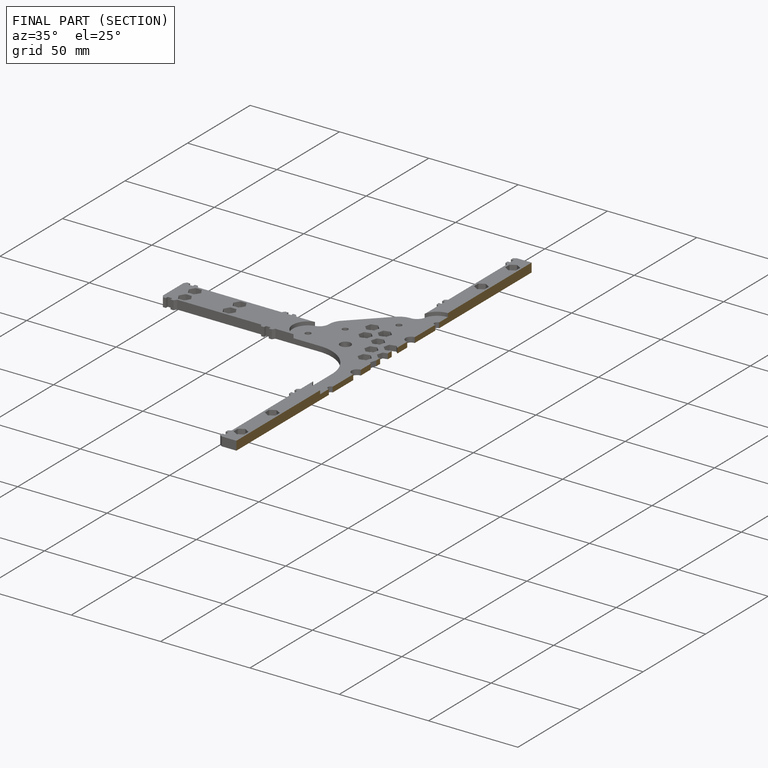
[diagram: finished part — half-section view (interior)]
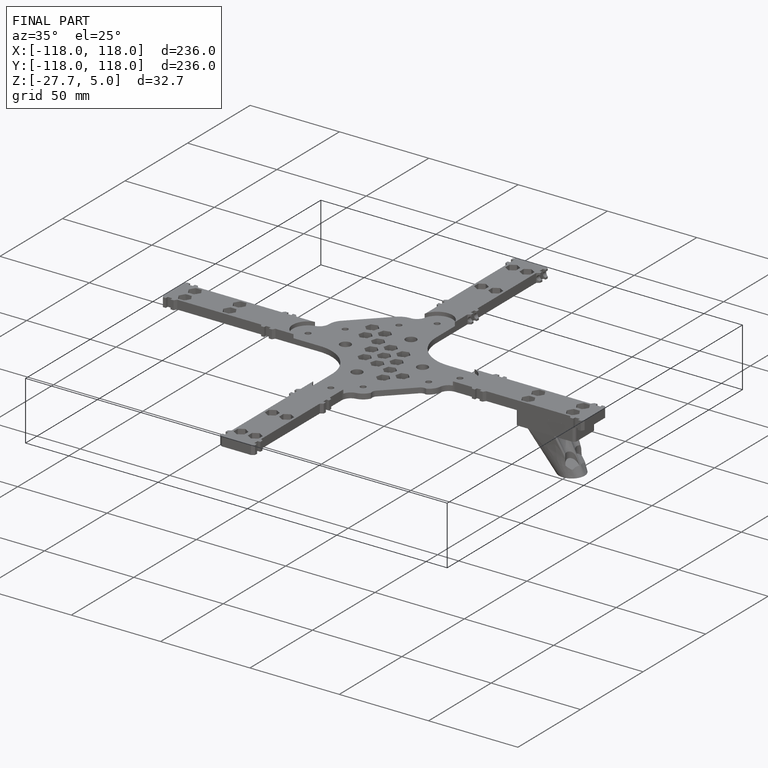
[diagram: finished part — iso view with bounding-box wireframe]
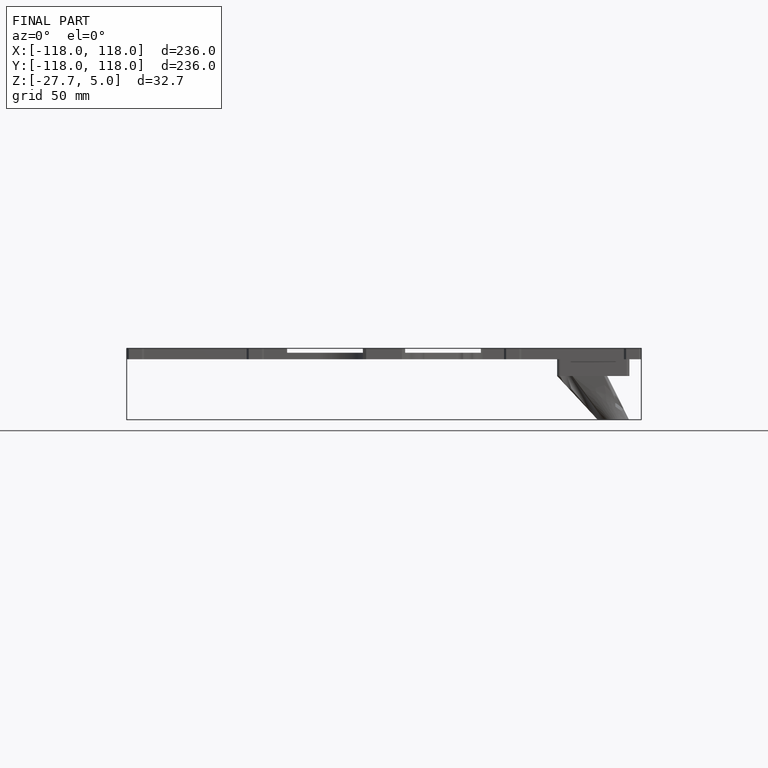
[diagram: finished part — front view with bounding-box wireframe]
